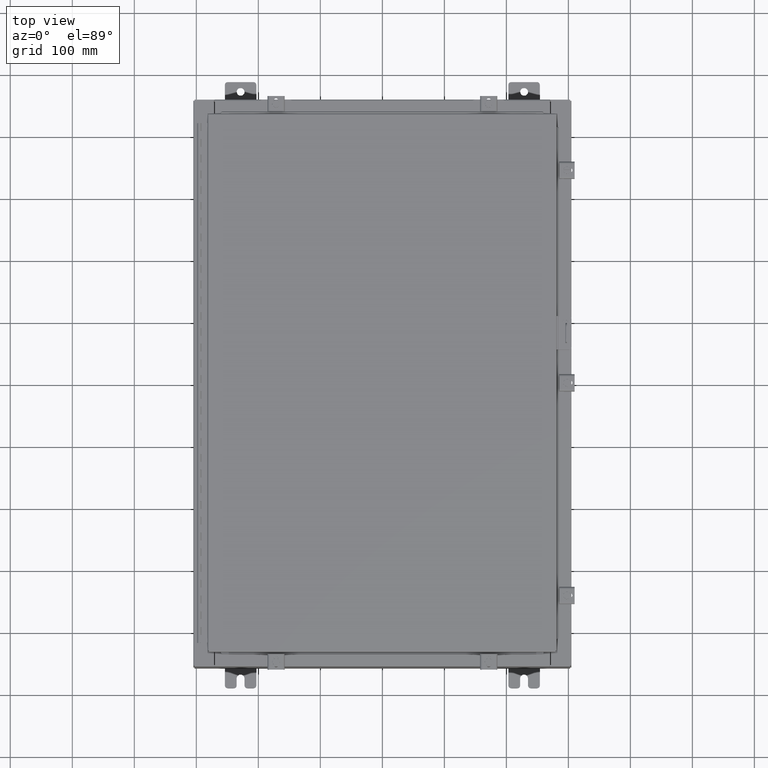
[diagram: clean part render]
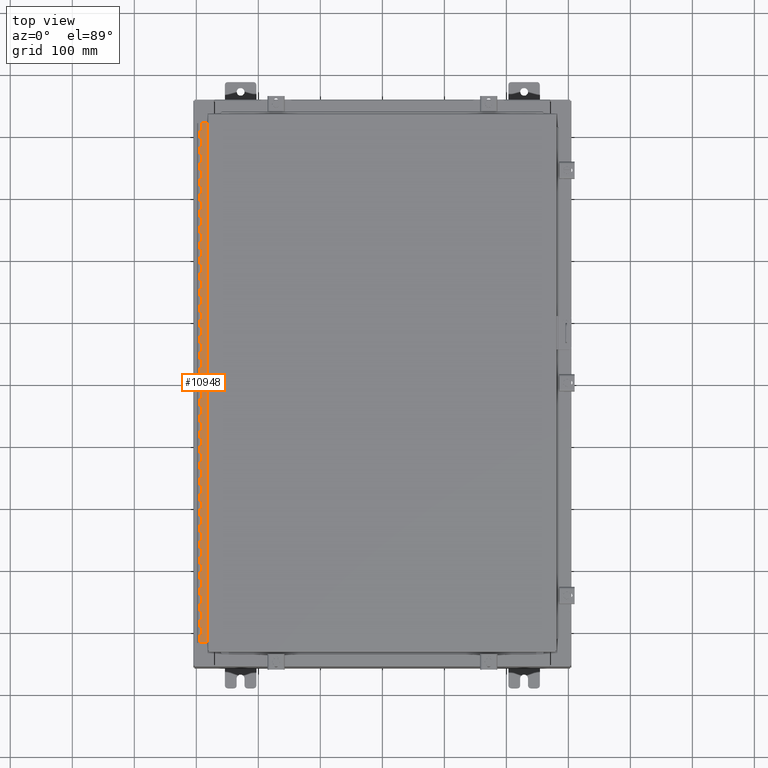
[diagram: same view with one face highlighted and labeled with its STEP entity id]
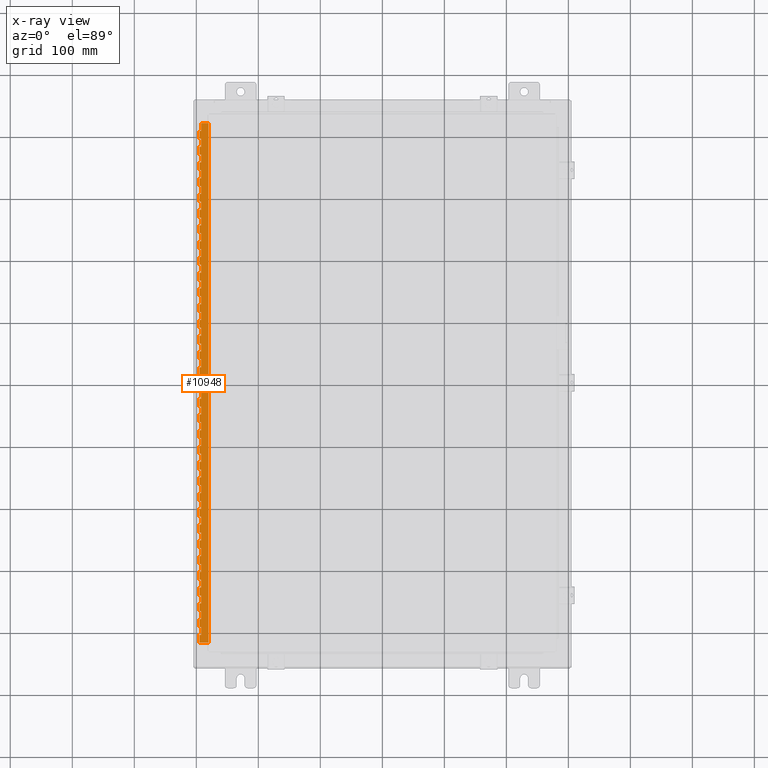
[diagram: x-ray of the same camera — body ghosted, the highlighted face saturated]
A machine part, top view. The second image highlights one B-rep face of the part: STEP entity #10948.
The next image is the same camera in x-ray: the body ghosted, the highlighted face saturated — about 0% of this face is hidden behind the body in this view.
In plain terms, the highlighted planar face has unit normal (-0, -0, 1).
Its self-contained STEP definition (entity closure, byte-faithful):
#8 = CARTESIAN_POINT ( 'NONE',  ( -0.6869999999999987200, 0.5504999999999989900, -19.50000000000000000 ) ) ;
#16 = CARTESIAN_POINT ( 'NONE',  ( -0.6870000000000030500, 0.8005000000000001000, -20.50000000000000400 ) ) ;
#17 = CARTESIAN_POINT ( 'NONE',  ( -0.6870000000000030500, 0.6755000000000007700, -29.99999999999999600 ) ) ;
#38 = VECTOR ( 'NONE', #21689, 39.37007874015748100 ) ;
#50 = VECTOR ( 'NONE', #12789, 39.37007874015748100 ) ;
#70 = CARTESIAN_POINT ( 'NONE',  ( -0.6869999999999976100, 0.6754999999999897800, -33.00000000000000000 ) ) ;
#73 = VECTOR ( 'NONE', #21015, 39.37007874015748100 ) ;
#75 = EDGE_CURVE ( 'NONE', #11328, #9581, #25940, .T. ) ;
#197 = ORIENTED_EDGE ( 'NONE', *, *, #27205, .F. ) ;
#260 = CARTESIAN_POINT ( 'NONE',  ( -0.6870000000000030500, 0.8005000000000001000, -24.50000000000000000 ) ) ;
#268 = VECTOR ( 'NONE', #21745, 39.37007874015748100 ) ;
#351 = ORIENTED_EDGE ( 'NONE', *, *, #25756, .F. ) ;
#386 = VECTOR ( 'NONE', #15845, 39.37007874015748100 ) ;
#535 = EDGE_CURVE ( 'NONE', #28699, #23317, #24854, .T. ) ;
#547 = LINE ( 'NONE', #26279, #25729 ) ;
#665 = ORIENTED_EDGE ( 'NONE', *, *, #19545, .T. ) ;
#761 = CARTESIAN_POINT ( 'NONE',  ( -0.6869999999999987200, 0.5504999999999989900, -25.50000000000000400 ) ) ;
#774 = VERTEX_POINT ( 'NONE', #9739 ) ;
#796 = VECTOR ( 'NONE', #5304, 39.37007874015748100 ) ;
#867 = CARTESIAN_POINT ( 'NONE',  ( -0.6869999999999976100, 0.8004999999999978800, -9.000000000000001800 ) ) ;
#941 = VERTEX_POINT ( 'NONE', #4713 ) ;
#962 = VECTOR ( 'NONE', #13721, 39.37007874015748100 ) ;
#981 = ORIENTED_EDGE ( 'NONE', *, *, #31476, .T. ) ;
#1081 = ORIENTED_EDGE ( 'NONE', *, *, #1623, .F. ) ;
#1095 = VERTEX_POINT ( 'NONE', #12189 ) ;
#1182 = VECTOR ( 'NONE', #9753, 39.37007874015748100 ) ;
#1204 = VERTEX_POINT ( 'NONE', #16055 ) ;
#1239 = VERTEX_POINT ( 'NONE', #32580 ) ;
#1276 = EDGE_CURVE ( 'NONE', #34163, #29690, #14518, .T. ) ;
#1348 = DIRECTION ( 'NONE',  ( 3.389037039080716000E-015, 1.000000000000000000, -6.767234438442647900E-031 ) ) ;
#1376 = CARTESIAN_POINT ( 'NONE',  ( -0.6869999999999998300, 0.5505000000000011000, -0.4999999999999973900 ) ) ;
#1506 = VERTEX_POINT ( 'NONE', #27666 ) ;
#1591 = VERTEX_POINT ( 'NONE', #21608 ) ;
#1608 = DIRECTION ( 'NONE',  ( 2.438073235198691400E-028, 6.823433535718099600E-031, -1.000000000000000000 ) ) ;
#1623 = EDGE_CURVE ( 'NONE', #8981, #14154, #4192, .T. ) ;
#1652 = EDGE_CURVE ( 'NONE', #26877, #41457, #8838, .T. ) ;
#1666 = CARTESIAN_POINT ( 'NONE',  ( -0.6870000000000030500, 0.6754999999999985500, -12.99999999999999800 ) ) ;
#1669 = DIRECTION ( 'NONE',  ( 3.389037039080716000E-015, 1.000000000000000000, -6.767234438442647900E-031 ) ) ;
#1703 = EDGE_CURVE ( 'NONE', #27707, #5653, #35036, .T. ) ;
#1704 = CARTESIAN_POINT ( 'NONE',  ( -0.6870000000000030500, 0.5504999999999902200, -8.500000000000000000 ) ) ;
#1753 = ORIENTED_EDGE ( 'NONE', *, *, #7909, .F. ) ;
#1787 = VERTEX_POINT ( 'NONE', #38988 ) ;
#1790 = CARTESIAN_POINT ( 'NONE',  ( -0.6869999999999987200, 0.5504999999999989900, -10.50000000000000200 ) ) ;
#1824 = EDGE_CURVE ( 'NONE', #40299, #33196, #38614, .T. ) ;
#1848 = VERTEX_POINT ( 'NONE', #6537 ) ;
#1999 = VECTOR ( 'NONE', #22609, 39.37007874015748100 ) ;
#2067 = EDGE_CURVE ( 'NONE', #42398, #35208, #5189, .T. ) ;
#2070 = LINE ( 'NONE', #41020, #21640 ) ;
#2083 = EDGE_CURVE ( 'NONE', #9573, #16185, #20629, .T. ) ;
#2111 = EDGE_CURVE ( 'NONE', #35100, #22403, #2070, .T. ) ;
#2114 = LINE ( 'NONE', #28917, #27333 ) ;
#2200 = LINE ( 'NONE', #3872, #35132 ) ;
#2287 = VECTOR ( 'NONE', #19956, 39.37007874015748100 ) ;
#2318 = EDGE_CURVE ( 'NONE', #14108, #9584, #12364, .T. ) ;
#2331 = CARTESIAN_POINT ( 'NONE',  ( -0.6869999999999987200, 0.5504999999999902200, -5.999999999999999100 ) ) ;
#2474 = CARTESIAN_POINT ( 'NONE',  ( -0.6869999999999976100, 0.8005000000000001000, -23.00000000000000000 ) ) ;
#2485 = CARTESIAN_POINT ( 'NONE',  ( -0.6870000000000030500, 0.6754999999999985500, -20.00000000000000000 ) ) ;
#2558 = VECTOR ( 'NONE', #11183, 39.37007874015748100 ) ;
#2576 = LINE ( 'NONE', #29443, #27796 ) ;
#2622 = DIRECTION ( 'NONE',  ( 3.389037039080716000E-015, 1.000000000000000000, -6.767234438442647900E-031 ) ) ;
#2660 = DIRECTION ( 'NONE',  ( -3.389037039080716000E-015, -1.000000000000000000, 6.767234438442647900E-031 ) ) ;
#2668 = LINE ( 'NONE', #4663, #10409 ) ;
#2695 = VECTOR ( 'NONE', #17365, 39.37007874015748100 ) ;
#2845 = CARTESIAN_POINT ( 'NONE',  ( -0.6869999999999987200, 0.6755000000000007700, -28.50000000000000000 ) ) ;
#2910 = CARTESIAN_POINT ( 'NONE',  ( -0.6869999999999976100, 0.6754999999999897800, -33.00000000000000000 ) ) ;
#2942 = EDGE_CURVE ( 'NONE', #13223, #39235, #7208, .T. ) ;
#2944 = CARTESIAN_POINT ( 'NONE',  ( -0.6870000000000030500, 0.5504999999999989900, -23.00000000000000000 ) ) ;
#2970 = LINE ( 'NONE', #13264, #10713 ) ;
#2997 = EDGE_CURVE ( 'NONE', #10145, #38645, #3025, .T. ) ;
#3025 = LINE ( 'NONE', #2910, #1999 ) ;
#3182 = VECTOR ( 'NONE', #24687, 39.37007874015748100 ) ;
#3205 = VERTEX_POINT ( 'NONE', #761 ) ;
#3206 = LINE ( 'NONE', #39980, #29448 ) ;
#3244 = VERTEX_POINT ( 'NONE', #30499 ) ;
#3293 = LINE ( 'NONE', #24175, #37217 ) ;
#3305 = ORIENTED_EDGE ( 'NONE', *, *, #14827, .T. ) ;
#3328 = VERTEX_POINT ( 'NONE', #17741 ) ;
#3355 = ORIENTED_EDGE ( 'NONE', *, *, #15293, .F. ) ;
#3420 = LINE ( 'NONE', #15540, #18864 ) ;
#3428 = LINE ( 'NONE', #7935, #19913 ) ;
#3460 = DIRECTION ( 'NONE',  ( -2.438073235198691400E-028, -6.823433535718099600E-031, 1.000000000000000000 ) ) ;
#3470 = ORIENTED_EDGE ( 'NONE', *, *, #7946, .F. ) ;
#3545 = VERTEX_POINT ( 'NONE', #28606 ) ;
#3568 = VERTEX_POINT ( 'NONE', #18858 ) ;
#3600 = CARTESIAN_POINT ( 'NONE',  ( -0.6870000000000030500, -0.6245000000000002800, 0.0000000000000000000 ) ) ;
#3669 = CARTESIAN_POINT ( 'NONE',  ( -0.6870000000000019400, 0.8004999999999978800, -11.50000000000000200 ) ) ;
#3706 = LINE ( 'NONE', #33820, #37622 ) ;
#3736 = DIRECTION ( 'NONE',  ( -3.389037039080716000E-015, -1.000000000000000000, 6.767234438442647900E-031 ) ) ;
#3756 = VECTOR ( 'NONE', #31275, 39.37007874015748100 ) ;
#3766 = VERTEX_POINT ( 'NONE', #37968 ) ;
#3872 = CARTESIAN_POINT ( 'NONE',  ( -0.6870000000000041600, 0.5504999999999989900, -12.49999999999999800 ) ) ;
#4030 = LINE ( 'NONE', #9673, #29220 ) ;
#4033 = PLANE ( 'NONE',  #29824 ) ;
#4192 = LINE ( 'NONE', #11985, #36058 ) ;
#4249 = DIRECTION ( 'NONE',  ( -3.389037039080716000E-015, -1.000000000000000000, 6.767234438442647900E-031 ) ) ;
#4265 = EDGE_CURVE ( 'NONE', #10120, #1204, #5866, .T. ) ;
#4271 = CARTESIAN_POINT ( 'NONE',  ( -0.6869999999999987200, 0.8005000000000001000, -21.50000000000000400 ) ) ;
#4379 = VECTOR ( 'NONE', #1348, 39.37007874015748100 ) ;
#4452 = EDGE_CURVE ( 'NONE', #35535, #10120, #16132, .T. ) ;
#4490 = LINE ( 'NONE', #37127, #38401 ) ;
#4536 = DIRECTION ( 'NONE',  ( -3.389037039080716000E-015, -1.000000000000000000, 6.767234438442647900E-031 ) ) ;
#4540 = VECTOR ( 'NONE', #15156, 39.37007874015748100 ) ;
#4601 = EDGE_CURVE ( 'NONE', #5038, #36619, #36150, .T. ) ;
#4625 = CARTESIAN_POINT ( 'NONE',  ( -0.6869999999999976100, 0.6754999999999897800, -33.00000000000000000 ) ) ;
#4661 = EDGE_CURVE ( 'NONE', #38557, #8618, #7904, .T. ) ;
#4663 = CARTESIAN_POINT ( 'NONE',  ( -0.6870000000000030500, 0.8005000000000001000, -0.4999999999999973900 ) ) ;
#4713 = CARTESIAN_POINT ( 'NONE',  ( -0.6870000000000030500, 0.6754999999999897800, -3.000000000000001800 ) ) ;
#4722 = ORIENTED_EDGE ( 'NONE', *, *, #25692, .F. ) ;
#4736 = EDGE_CURVE ( 'NONE', #16209, #26875, #40819, .T. ) ;
#4750 = CARTESIAN_POINT ( 'NONE',  ( -0.6869999999999987200, 0.6755000000000007700, -23.00000000000000000 ) ) ;
#4785 = VECTOR ( 'NONE', #7315, 39.37007874015748100 ) ;
#4822 = EDGE_CURVE ( 'NONE', #11050, #39902, #20222, .T. ) ;
#4848 = VERTEX_POINT ( 'NONE', #7743 ) ;
#4858 = DIRECTION ( 'NONE',  ( -3.389037039080716000E-015, -1.000000000000000000, 6.767234438442647900E-031 ) ) ;
#4889 = VECTOR ( 'NONE', #12823, 39.37007874015748100 ) ;
#4936 = VECTOR ( 'NONE', #19046, 39.37007874015748100 ) ;
#4954 = EDGE_CURVE ( 'NONE', #11328, #16288, #31485, .T. ) ;
#4963 = VERTEX_POINT ( 'NONE', #18354 ) ;
#4984 = VERTEX_POINT ( 'NONE', #21787 ) ;
#5029 = CARTESIAN_POINT ( 'NONE',  ( -0.6869999999999976100, 0.8005000000000001000, -22.00000000000000000 ) ) ;
#5031 = VECTOR ( 'NONE', #39043, 39.37007874015748100 ) ;
#5038 = VERTEX_POINT ( 'NONE', #18785 ) ;
#5072 = CARTESIAN_POINT ( 'NONE',  ( -0.6869999999999998300, 0.6755000000000007700, -22.50000000000000000 ) ) ;
#5111 = CARTESIAN_POINT ( 'NONE',  ( -0.6870000000000041600, 0.5504999999999989900, -17.50000000000000000 ) ) ;
#5127 = ORIENTED_EDGE ( 'NONE', *, *, #26204, .F. ) ;
#5134 = ORIENTED_EDGE ( 'NONE', *, *, #29633, .F. ) ;
#5189 = LINE ( 'NONE', #17730, #29344 ) ;
#5219 = VERTEX_POINT ( 'NONE', #2331 ) ;
#5235 = EDGE_CURVE ( 'NONE', #7936, #1506, #5772, .T. ) ;
#5304 = DIRECTION ( 'NONE',  ( 2.438073235198691400E-028, 6.823433535718099600E-031, -1.000000000000000000 ) ) ;
#5490 = LINE ( 'NONE', #70, #39431 ) ;
#5527 = LINE ( 'NONE', #17381, #30705 ) ;
#5565 = DIRECTION ( 'NONE',  ( 2.438073235198691400E-028, 6.823433535718099600E-031, -1.000000000000000000 ) ) ;
#5604 = DIRECTION ( 'NONE',  ( -3.389037039080716000E-015, -1.000000000000000000, 6.767234438442647900E-031 ) ) ;
#5609 = CARTESIAN_POINT ( 'NONE',  ( -0.6870000000000030500, 0.6754999999999985500, -17.50000000000000000 ) ) ;
#5629 = EDGE_CURVE ( 'NONE', #14862, #39902, #17572, .T. ) ;
#5653 = VERTEX_POINT ( 'NONE', #4750 ) ;
#5657 = EDGE_CURVE ( 'NONE', #19343, #21140, #40723, .T. ) ;
#5692 = VECTOR ( 'NONE', #25675, 39.37007874015748100 ) ;
#5693 = CARTESIAN_POINT ( 'NONE',  ( -0.6870000000000019400, 0.8005000000000001000, -16.00000000000000000 ) ) ;
#5746 = CARTESIAN_POINT ( 'NONE',  ( -0.6870000000000041600, 0.5504999999999989900, -17.00000000000000000 ) ) ;
#5772 = LINE ( 'NONE', #12550, #21191 ) ;
#5775 = VECTOR ( 'NONE', #29555, 39.37007874015748100 ) ;
#5778 = CARTESIAN_POINT ( 'NONE',  ( -0.6869999999999987200, 0.6754999999999985500, -8.500000000000000000 ) ) ;
#5866 = LINE ( 'NONE', #37474, #39813 ) ;
#5910 = LINE ( 'NONE', #23939, #40905 ) ;
#5919 = CARTESIAN_POINT ( 'NONE',  ( -0.6870000000000041600, 0.5504999999999902200, -2.500000000000000000 ) ) ;
#5928 = LINE ( 'NONE', #32518, #4889 ) ;
#5945 = CARTESIAN_POINT ( 'NONE',  ( -0.6870000000000019400, 0.8005000000000001000, -29.99999999999999600 ) ) ;
#5997 = VERTEX_POINT ( 'NONE', #22829 ) ;
#6003 = DIRECTION ( 'NONE',  ( 3.389037039080716000E-015, 1.000000000000000000, -6.767234438442647900E-031 ) ) ;
#6033 = CARTESIAN_POINT ( 'NONE',  ( -0.6870000000000030500, 0.5504999999999989900, -23.50000000000000000 ) ) ;
#6034 = CARTESIAN_POINT ( 'NONE',  ( -0.6870000000000030500, 0.5504999999999989900, -22.50000000000000000 ) ) ;
#6047 = VECTOR ( 'NONE', #40172, 39.37007874015748100 ) ;
#6081 = EDGE_CURVE ( 'NONE', #16209, #12828, #31406, .T. ) ;
#6106 = LINE ( 'NONE', #28841, #31268 ) ;
#6134 = LINE ( 'NONE', #4271, #40084 ) ;
#6145 = EDGE_CURVE ( 'NONE', #19797, #12612, #17528, .T. ) ;
#6170 = LINE ( 'NONE', #28285, #22600 ) ;
#6211 = LINE ( 'NONE', #40945, #22640 ) ;
#6269 = EDGE_CURVE ( 'NONE', #34163, #35311, #28792, .T. ) ;
#6270 = DIRECTION ( 'NONE',  ( 3.389037039080716000E-015, 1.000000000000000000, -6.767234438442647900E-031 ) ) ;
#6294 = VECTOR ( 'NONE', #2660, 39.37007874015748100 ) ;
#6307 = ORIENTED_EDGE ( 'NONE', *, *, #13650, .T. ) ;
#6321 = CARTESIAN_POINT ( 'NONE',  ( -0.6870000000000030500, 0.5505000000000011000, -32.00000000000000000 ) ) ;
#6348 = VECTOR ( 'NONE', #33839, 39.37007874015748100 ) ;
#6388 = ORIENTED_EDGE ( 'NONE', *, *, #32391, .T. ) ;
#6425 = CARTESIAN_POINT ( 'NONE',  ( -0.6870000000000030500, 0.8005000000000001000, -29.50000000000000000 ) ) ;
#6492 = EDGE_CURVE ( 'NONE', #19568, #27446, #24679, .T. ) ;
#6503 = ORIENTED_EDGE ( 'NONE', *, *, #40039, .F. ) ;
#6521 = VERTEX_POINT ( 'NONE', #9167 ) ;
#6537 = CARTESIAN_POINT ( 'NONE',  ( -0.6869999999999987200, 0.5504999999999902200, -6.499999999999999100 ) ) ;
#6566 = DIRECTION ( 'NONE',  ( 3.389037039080716000E-015, 1.000000000000000000, -6.767234438442647900E-031 ) ) ;
#6575 = EDGE_CURVE ( 'NONE', #19506, #13416, #23783, .T. ) ;
#6616 = CARTESIAN_POINT ( 'NONE',  ( -0.6869999999999998300, 0.6755000000000007700, -32.00000000000000000 ) ) ;
#6641 = VERTEX_POINT ( 'NONE', #31987 ) ;
#6721 = DIRECTION ( 'NONE',  ( 3.369016658928391100E-015, 1.000000000000000000, -7.336534739310817400E-031 ) ) ;
#6758 = VERTEX_POINT ( 'NONE', #13021 ) ;
#6769 = LINE ( 'NONE', #16152, #14477 ) ;
#6891 = VERTEX_POINT ( 'NONE', #37271 ) ;
#6892 = EDGE_CURVE ( 'NONE', #38851, #12570, #28910, .T. ) ;
#6930 = EDGE_CURVE ( 'NONE', #38131, #13223, #2668, .T. ) ;
#6989 = VERTEX_POINT ( 'NONE', #21350 ) ;
#7112 = LINE ( 'NONE', #32428, #5031 ) ;
#7195 = CARTESIAN_POINT ( 'NONE',  ( -0.6870000000000030500, 0.5504999999999989900, -27.50000000000000000 ) ) ;
#7199 = VECTOR ( 'NONE', #32791, 39.37007874015748100 ) ;
#7208 = LINE ( 'NONE', #12571, #39049 ) ;
#7279 = DIRECTION ( 'NONE',  ( -3.389037039080716000E-015, -1.000000000000000000, 6.767234438442647900E-031 ) ) ;
#7284 = ORIENTED_EDGE ( 'NONE', *, *, #41199, .F. ) ;
#7315 = DIRECTION ( 'NONE',  ( -3.389037039080716000E-015, -1.000000000000000000, 6.767234438442647900E-031 ) ) ;
#7367 = DIRECTION ( 'NONE',  ( 1.000000000000000000, -3.369016658928390700E-015, -2.440538425527494500E-028 ) ) ;
#7425 = DIRECTION ( 'NONE',  ( 2.438073235198691400E-028, 6.823433535718099600E-031, -1.000000000000000000 ) ) ;
#7449 = LINE ( 'NONE', #28879, #10526 ) ;
#7458 = CARTESIAN_POINT ( 'NONE',  ( -0.6870000000000030500, 0.6754999999999897800, -1.999999999999998400 ) ) ;
#7462 = LINE ( 'NONE', #27088, #32630 ) ;
#7471 = DIRECTION ( 'NONE',  ( 2.438073235198691400E-028, 6.823433535718099600E-031, -1.000000000000000000 ) ) ;
#7484 = VERTEX_POINT ( 'NONE', #13855 ) ;
#7513 = DIRECTION ( 'NONE',  ( 3.389037039080716000E-015, 1.000000000000000000, -6.767234438442647900E-031 ) ) ;
#7607 = CARTESIAN_POINT ( 'NONE',  ( -0.6869999999999976100, 0.6754999999999897800, -33.00000000000000000 ) ) ;
#7611 = CARTESIAN_POINT ( 'NONE',  ( -0.6870000000000030500, 0.8004999999999978800, -10.50000000000000200 ) ) ;
#7648 = FACE_OUTER_BOUND ( 'NONE', #16157, .T. ) ;
#7725 = DIRECTION ( 'NONE',  ( 3.389037039080716000E-015, 1.000000000000000000, -6.767234438442647900E-031 ) ) ;
#7743 = CARTESIAN_POINT ( 'NONE',  ( -0.6869999999999987200, 0.6754999999999985500, -19.00000000000000000 ) ) ;
#7830 = VERTEX_POINT ( 'NONE', #25703 ) ;
#7883 = VERTEX_POINT ( 'NONE', #42426 ) ;
#7904 = LINE ( 'NONE', #29842, #15587 ) ;
#7909 = EDGE_CURVE ( 'NONE', #30779, #12846, #2576, .T. ) ;
#7935 = CARTESIAN_POINT ( 'NONE',  ( -0.6869999999999987200, 0.5504999999999989900, -24.50000000000000000 ) ) ;
#7936 = VERTEX_POINT ( 'NONE', #29594 ) ;
#7943 = CARTESIAN_POINT ( 'NONE',  ( -0.6870000000000030500, 0.6754999999999985500, -22.00000000000000000 ) ) ;
#7944 = ORIENTED_EDGE ( 'NONE', *, *, #4822, .T. ) ;
#7946 = EDGE_CURVE ( 'NONE', #6891, #30825, #547, .T. ) ;
#7971 = ORIENTED_EDGE ( 'NONE', *, *, #23055, .F. ) ;
#8009 = EDGE_CURVE ( 'NONE', #5219, #21140, #6211, .T. ) ;
#8016 = DIRECTION ( 'NONE',  ( -3.389037039080716000E-015, -1.000000000000000000, 6.767234438442647900E-031 ) ) ;
#8061 = EDGE_CURVE ( 'NONE', #1095, #8981, #31384, .T. ) ;
#8135 = VECTOR ( 'NONE', #30578, 39.37007874015748100 ) ;
#8183 = EDGE_CURVE ( 'NONE', #12742, #1591, #16473, .T. ) ;
#8219 = EDGE_CURVE ( 'NONE', #36938, #41962, #14410, .T. ) ;
#8300 = LINE ( 'NONE', #14898, #25749 ) ;
#8315 = CARTESIAN_POINT ( 'NONE',  ( -0.6870000000000030500, 0.8005000000000001000, -23.99999999999999600 ) ) ;
#8483 = VECTOR ( 'NONE', #19557, 39.37007874015748100 ) ;
#8524 = DIRECTION ( 'NONE',  ( 2.438073235198691400E-028, 6.823433535718099600E-031, -1.000000000000000000 ) ) ;
#8535 = VECTOR ( 'NONE', #36846, 39.37007874015748100 ) ;
#8544 = LINE ( 'NONE', #34774, #796 ) ;
#8554 = EDGE_CURVE ( 'NONE', #17010, #36324, #29284, .T. ) ;
#8556 = EDGE_CURVE ( 'NONE', #7830, #3545, #19513, .T. ) ;
#8618 = VERTEX_POINT ( 'NONE', #34693 ) ;
#8631 = CARTESIAN_POINT ( 'NONE',  ( -0.6870000000000030500, 0.5504999999999902200, -32.50000000000000000 ) ) ;
#8638 = VECTOR ( 'NONE', #20083, 39.37007874015748100 ) ;
#8707 = DIRECTION ( 'NONE',  ( 3.389037039080716000E-015, 1.000000000000000000, -6.767234438442647900E-031 ) ) ;
#8766 = VERTEX_POINT ( 'NONE', #42014 ) ;
#8788 = VECTOR ( 'NONE', #42051, 39.37007874015748100 ) ;
#8838 = LINE ( 'NONE', #12270, #17577 ) ;
#8881 = ORIENTED_EDGE ( 'NONE', *, *, #37638, .F. ) ;
#8907 = VERTEX_POINT ( 'NONE', #17 ) ;
#8966 = CARTESIAN_POINT ( 'NONE',  ( -0.6870000000000030500, 0.5504999999999989900, -22.50000000000000000 ) ) ;
#8981 = VERTEX_POINT ( 'NONE', #13397 ) ;
#8990 = VECTOR ( 'NONE', #9009, 39.37007874015748100 ) ;
#9009 = DIRECTION ( 'NONE',  ( 2.438073235198691400E-028, 6.823433535718099600E-031, -1.000000000000000000 ) ) ;
#9031 = LINE ( 'NONE', #41475, #268 ) ;
#9060 = LINE ( 'NONE', #27959, #34217 ) ;
#9063 = CARTESIAN_POINT ( 'NONE',  ( -0.6869999999999987200, 0.6754999999999897800, -4.500000000000002700 ) ) ;
#9090 = VECTOR ( 'NONE', #14273, 39.37007874015748100 ) ;
#9153 = LINE ( 'NONE', #8966, #26616 ) ;
#9162 = ORIENTED_EDGE ( 'NONE', *, *, #8554, .T. ) ;
#9167 = CARTESIAN_POINT ( 'NONE',  ( -0.6869999999999976100, 0.6755000000000007700, -28.99999999999999600 ) ) ;
#9231 = DIRECTION ( 'NONE',  ( -2.438073235198691400E-028, -6.823433535718099600E-031, 1.000000000000000000 ) ) ;
#9264 = LINE ( 'NONE', #32899, #16967 ) ;
#9356 = EDGE_CURVE ( 'NONE', #1787, #22403, #6106, .T. ) ;
#9416 = VERTEX_POINT ( 'NONE', #5609 ) ;
#9419 = LINE ( 'NONE', #10769, #25837 ) ;
#9422 = ORIENTED_EDGE ( 'NONE', *, *, #41653, .T. ) ;
#9423 = VECTOR ( 'NONE', #7279, 39.37007874015748100 ) ;
#9433 = ORIENTED_EDGE ( 'NONE', *, *, #15887, .F. ) ;
#9464 = VECTOR ( 'NONE', #5604, 39.37007874015748100 ) ;
#9521 = CARTESIAN_POINT ( 'NONE',  ( -0.6870000000000030500, 0.6754999999999897800, -2.500000000000000000 ) ) ;
#9532 = DIRECTION ( 'NONE',  ( -2.438073235198691400E-028, -6.823433535718099600E-031, 1.000000000000000000 ) ) ;
#9573 = VERTEX_POINT ( 'NONE', #6321 ) ;
#9581 = VERTEX_POINT ( 'NONE', #36024 ) ;
#9584 = VERTEX_POINT ( 'NONE', #39372 ) ;
#9673 = CARTESIAN_POINT ( 'NONE',  ( -0.6869999999999976100, 0.8005000000000001000, -13.50000000000000000 ) ) ;
#9739 = CARTESIAN_POINT ( 'NONE',  ( -0.6870000000000041600, 0.5505000000000011000, -30.50000000000000400 ) ) ;
#9747 = ORIENTED_EDGE ( 'NONE', *, *, #12057, .F. ) ;
#9753 = DIRECTION ( 'NONE',  ( -3.389037039080716000E-015, -1.000000000000000000, 6.767234438442647900E-031 ) ) ;
#9769 = DIRECTION ( 'NONE',  ( 3.389037039080716000E-015, 1.000000000000000000, -6.767234438442647900E-031 ) ) ;
#9785 = EDGE_CURVE ( 'NONE', #34058, #30001, #34324, .T. ) ;
#9821 = LINE ( 'NONE', #24857, #38 ) ;
#9849 = CARTESIAN_POINT ( 'NONE',  ( -0.6870000000000030500, 0.8004999999999892200, -1.999999999999998400 ) ) ;
#9915 = DIRECTION ( 'NONE',  ( -2.438073235198691400E-028, -6.823433535718099600E-031, 1.000000000000000000 ) ) ;
#10092 = VECTOR ( 'NONE', #12778, 39.37007874015748100 ) ;
#10116 = EDGE_CURVE ( 'NONE', #4963, #9581, #38987, .T. ) ;
#10120 = VERTEX_POINT ( 'NONE', #42060 ) ;
#10121 = VECTOR ( 'NONE', #39920, 39.37007874015748100 ) ;
#10145 = VERTEX_POINT ( 'NONE', #32407 ) ;
#10253 = VERTEX_POINT ( 'NONE', #13316 ) ;
#10283 = CARTESIAN_POINT ( 'NONE',  ( -0.6869999999999976100, 0.6754999999999897800, -33.00000000000000000 ) ) ;
#10396 = VERTEX_POINT ( 'NONE', #23741 ) ;
#10409 = VECTOR ( 'NONE', #8016, 39.37007874015748100 ) ;
#10435 = LINE ( 'NONE', #20496, #9423 ) ;
#10526 = VECTOR ( 'NONE', #9231, 39.37007874015748100 ) ;
#10583 = CARTESIAN_POINT ( 'NONE',  ( -0.6869999999999976100, 0.6754999999999897800, -33.00000000000000000 ) ) ;
#10648 = CARTESIAN_POINT ( 'NONE',  ( -0.6869999999999987200, 0.5504999999999902200, -5.499999999999997300 ) ) ;
#10651 = ORIENTED_EDGE ( 'NONE', *, *, #25284, .F. ) ;
#10713 = VECTOR ( 'NONE', #3460, 39.37007874015748100 ) ;
#10769 = CARTESIAN_POINT ( 'NONE',  ( -0.6869999999999987200, 0.5504999999999989900, -15.50000000000000000 ) ) ;
#10773 = VECTOR ( 'NONE', #37681, 39.37007874015748100 ) ;
#10793 = EDGE_CURVE ( 'NONE', #10145, #3328, #4030, .T. ) ;
#10860 = EDGE_CURVE ( 'NONE', #3568, #14154, #2970, .T. ) ;
#10866 = CARTESIAN_POINT ( 'NONE',  ( -0.6869999999999976100, 0.6754999999999897800, -33.00000000000000000 ) ) ;
#10948 = ADVANCED_FACE ( 'NONE', ( #7648 ), #4033, .T. ) ;
#10972 = ORIENTED_EDGE ( 'NONE', *, *, #25869, .F. ) ;
#10988 = EDGE_CURVE ( 'NONE', #30726, #36324, #40563, .T. ) ;
#11050 = VERTEX_POINT ( 'NONE', #14249 ) ;
#11071 = LINE ( 'NONE', #25215, #35232 ) ;
#11135 = CARTESIAN_POINT ( 'NONE',  ( -0.6869999999999987200, 0.5504999999999902200, -0.9999999999999992200 ) ) ;
#11143 = VERTEX_POINT ( 'NONE', #1704 ) ;
#11167 = ORIENTED_EDGE ( 'NONE', *, *, #42499, .F. ) ;
#11183 = DIRECTION ( 'NONE',  ( -3.389037039080716000E-015, -1.000000000000000000, 6.767234438442647900E-031 ) ) ;
#11214 = CARTESIAN_POINT ( 'NONE',  ( -0.6870000000000030500, 0.5504999999999902200, -4.000000000000000900 ) ) ;
#11241 = CARTESIAN_POINT ( 'NONE',  ( -0.6869999999999976100, 0.8005000000000001000, -32.00000000000000000 ) ) ;
#11252 = CARTESIAN_POINT ( 'NONE',  ( -0.6869999999999987200, 0.5504999999999989900, -16.00000000000000000 ) ) ;
#11264 = VECTOR ( 'NONE', #6270, 39.37007874015748100 ) ;
#11288 = CARTESIAN_POINT ( 'NONE',  ( -0.6870000000000030500, 0.8005000000000001000, -19.00000000000000000 ) ) ;
#11328 = VERTEX_POINT ( 'NONE', #39056 ) ;
#11405 = ORIENTED_EDGE ( 'NONE', *, *, #16513, .F. ) ;
#11468 = EDGE_CURVE ( 'NONE', #38557, #4848, #5527, .T. ) ;
#11604 = CARTESIAN_POINT ( 'NONE',  ( -0.6870000000000019400, 0.8005000000000001000, -24.99999999999999600 ) ) ;
#11764 = CARTESIAN_POINT ( 'NONE',  ( -0.6870000000000030500, 0.6755000000000007700, -31.50000000000000400 ) ) ;
#11768 = EDGE_CURVE ( 'NONE', #17010, #38843, #12695, .T. ) ;
#11810 = CARTESIAN_POINT ( 'NONE',  ( -0.6869999999999976100, 0.8005000000000001000, -18.50000000000000000 ) ) ;
#11891 = DIRECTION ( 'NONE',  ( 2.438073235198691400E-028, 6.823433535718099600E-031, -1.000000000000000000 ) ) ;
#11972 = EDGE_CURVE ( 'NONE', #35535, #3244, #5490, .T. ) ;
#11985 = CARTESIAN_POINT ( 'NONE',  ( -0.6869999999999976100, 0.8005000000000001000, -17.99999999999999600 ) ) ;
#12057 = EDGE_CURVE ( 'NONE', #1848, #36663, #27586, .T. ) ;
#12110 = VERTEX_POINT ( 'NONE', #23751 ) ;
#12113 = ORIENTED_EDGE ( 'NONE', *, *, #8183, .F. ) ;
#12157 = ORIENTED_EDGE ( 'NONE', *, *, #30291, .T. ) ;
#12189 = CARTESIAN_POINT ( 'NONE',  ( -0.6870000000000041600, 0.5504999999999989900, -17.50000000000000000 ) ) ;
#12250 = LINE ( 'NONE', #38085, #4540 ) ;
#12270 = CARTESIAN_POINT ( 'NONE',  ( -0.6870000000000030500, 0.8004999999999978800, -10.00000000000000000 ) ) ;
#12330 = ORIENTED_EDGE ( 'NONE', *, *, #36802, .F. ) ;
#12364 = LINE ( 'NONE', #15485, #5692 ) ;
#12384 = VECTOR ( 'NONE', #16685, 39.37007874015748100 ) ;
#12440 = CARTESIAN_POINT ( 'NONE',  ( -0.6870000000000041600, 0.5505000000000011000, -31.00000000000000000 ) ) ;
#12469 = VERTEX_POINT ( 'NONE', #30452 ) ;
#12550 = CARTESIAN_POINT ( 'NONE',  ( -0.6870000000000041600, 0.5504999999999989900, -21.50000000000000400 ) ) ;
#12567 = VERTEX_POINT ( 'NONE', #34187 ) ;
#12570 = VERTEX_POINT ( 'NONE', #17838 ) ;
#12571 = CARTESIAN_POINT ( 'NONE',  ( -0.6869999999999998300, 0.5505000000000011000, -0.4999999999999973900 ) ) ;
#12595 = CARTESIAN_POINT ( 'NONE',  ( -0.6870000000000030500, 0.5504999999999967700, -9.500000000000003600 ) ) ;
#12612 = VERTEX_POINT ( 'NONE', #34465 ) ;
#12616 = ORIENTED_EDGE ( 'NONE', *, *, #24444, .F. ) ;
#12634 = ORIENTED_EDGE ( 'NONE', *, *, #31855, .T. ) ;
#12695 = LINE ( 'NONE', #28672, #20432 ) ;
#12742 = VERTEX_POINT ( 'NONE', #9063 ) ;
#12778 = DIRECTION ( 'NONE',  ( -3.389037039080716000E-015, -1.000000000000000000, 6.767234438442647900E-031 ) ) ;
#12789 = DIRECTION ( 'NONE',  ( -3.389037039080716000E-015, -1.000000000000000000, 6.767234438442647900E-031 ) ) ;
#12823 = DIRECTION ( 'NONE',  ( 2.438073235198691400E-028, 6.823433535718099600E-031, -1.000000000000000000 ) ) ;
#12828 = VERTEX_POINT ( 'NONE', #35593 ) ;
#12846 = VERTEX_POINT ( 'NONE', #39050 ) ;
#12897 = ORIENTED_EDGE ( 'NONE', *, *, #30870, .F. ) ;
#12937 = EDGE_CURVE ( 'NONE', #12469, #12971, #28522, .T. ) ;
#12971 = VERTEX_POINT ( 'NONE', #39786 ) ;
#12976 = ORIENTED_EDGE ( 'NONE', *, *, #39167, .F. ) ;
#13021 = CARTESIAN_POINT ( 'NONE',  ( -0.6870000000000041600, 0.5504999999999989900, -16.50000000000000000 ) ) ;
#13134 = EDGE_CURVE ( 'NONE', #30961, #6758, #5910, .T. ) ;
#13223 = VERTEX_POINT ( 'NONE', #1376 ) ;
#13230 = VERTEX_POINT ( 'NONE', #21207 ) ;
#13264 = CARTESIAN_POINT ( 'NONE',  ( -0.6869999999999976100, 0.6754999999999897800, -33.00000000000000000 ) ) ;
#13280 = ORIENTED_EDGE ( 'NONE', *, *, #30462, .T. ) ;
#13312 = CARTESIAN_POINT ( 'NONE',  ( -0.6869999999999976100, 0.6754999999999897800, -33.00000000000000000 ) ) ;
#13316 = CARTESIAN_POINT ( 'NONE',  ( -0.6869999999999998300, 0.5504999999999989900, -19.00000000000000000 ) ) ;
#13350 = DIRECTION ( 'NONE',  ( -3.389037039080716000E-015, -1.000000000000000000, 6.767234438442647900E-031 ) ) ;
#13389 = CARTESIAN_POINT ( 'NONE',  ( -0.6870000000000030500, 0.5504999999999989900, -23.50000000000000000 ) ) ;
#13397 = CARTESIAN_POINT ( 'NONE',  ( -0.6870000000000030500, 0.5504999999999989900, -17.99999999999999600 ) ) ;
#13416 = VERTEX_POINT ( 'NONE', #2485 ) ;
#13453 = CARTESIAN_POINT ( 'NONE',  ( -0.6869999999999987200, 0.6754999999999985500, -9.000000000000001800 ) ) ;
#13650 = EDGE_CURVE ( 'NONE', #30961, #27446, #27129, .T. ) ;
#13718 = CARTESIAN_POINT ( 'NONE',  ( -0.6870000000000030500, 0.6754999999999985500, -8.000000000000001800 ) ) ;
#13721 = DIRECTION ( 'NONE',  ( -2.438073235198691400E-028, -6.823433535718099600E-031, 1.000000000000000000 ) ) ;
#13764 = EDGE_CURVE ( 'NONE', #8618, #19506, #39471, .T. ) ;
#13841 = CARTESIAN_POINT ( 'NONE',  ( -0.6870000000000030500, 0.5504999999999989900, -14.00000000000000000 ) ) ;
#13855 = CARTESIAN_POINT ( 'NONE',  ( -0.6870000000000030500, 0.6755000000000007700, -29.50000000000000000 ) ) ;
#13889 = ORIENTED_EDGE ( 'NONE', *, *, #28537, .T. ) ;
#13912 = VECTOR ( 'NONE', #14212, 39.37007874015748100 ) ;
#13930 = CARTESIAN_POINT ( 'NONE',  ( -0.6869999999999987200, 0.6754999999999897800, -32.50000000000000000 ) ) ;
#14023 = VERTEX_POINT ( 'NONE', #18542 ) ;
#14059 = ORIENTED_EDGE ( 'NONE', *, *, #15002, .F. ) ;
#14089 = CARTESIAN_POINT ( 'NONE',  ( -0.6870000000000030500, 0.8005000000000001000, -28.00000000000000000 ) ) ;
#14108 = VERTEX_POINT ( 'NONE', #5746 ) ;
#14142 = VERTEX_POINT ( 'NONE', #38797 ) ;
#14154 = VERTEX_POINT ( 'NONE', #22415 ) ;
#14212 = DIRECTION ( 'NONE',  ( -3.389037039080716000E-015, -1.000000000000000000, 6.767234438442647900E-031 ) ) ;
#14249 = CARTESIAN_POINT ( 'NONE',  ( -0.6870000000000030500, 0.6754999999999985500, -11.50000000000000200 ) ) ;
#14273 = DIRECTION ( 'NONE',  ( 2.438073235198691400E-028, 6.823433535718099600E-031, -1.000000000000000000 ) ) ;
#14310 = VECTOR ( 'NONE', #7513, 39.37007874015748100 ) ;
#14321 = ORIENTED_EDGE ( 'NONE', *, *, #1703, .F. ) ;
#14371 = CARTESIAN_POINT ( 'NONE',  ( -0.6870000000000030500, 0.5504999999999989900, -12.99999999999999800 ) ) ;
#14402 = CARTESIAN_POINT ( 'NONE',  ( -0.6869999999999976100, 0.6754999999999897800, -33.00000000000000000 ) ) ;
#14406 = VECTOR ( 'NONE', #35920, 39.37007874015748100 ) ;
#14410 = LINE ( 'NONE', #25635, #30852 ) ;
#14428 = ORIENTED_EDGE ( 'NONE', *, *, #10988, .F. ) ;
#14433 = VERTEX_POINT ( 'NONE', #27828 ) ;
#14474 = CARTESIAN_POINT ( 'NONE',  ( -0.6869999999999976100, 0.6754999999999985500, -19.50000000000000000 ) ) ;
#14477 = VECTOR ( 'NONE', #29496, 39.37007874015748100 ) ;
#14518 = LINE ( 'NONE', #35993, #5775 ) ;
#14522 = DIRECTION ( 'NONE',  ( 2.438073235198691400E-028, 6.823433535718099600E-031, -1.000000000000000000 ) ) ;
#14527 = ORIENTED_EDGE ( 'NONE', *, *, #5629, .F. ) ;
#14621 = ORIENTED_EDGE ( 'NONE', *, *, #36497, .F. ) ;
#14702 = LINE ( 'NONE', #32263, #4936 ) ;
#14736 = ORIENTED_EDGE ( 'NONE', *, *, #1652, .F. ) ;
#14827 = EDGE_CURVE ( 'NONE', #18329, #16185, #28562, .T. ) ;
#14862 = VERTEX_POINT ( 'NONE', #23610 ) ;
#14889 = CARTESIAN_POINT ( 'NONE',  ( -0.6869999999999976100, 0.6754999999999897800, -33.00000000000000000 ) ) ;
#14898 = CARTESIAN_POINT ( 'NONE',  ( -0.6869999999999976100, 0.6754999999999897800, -33.00000000000000000 ) ) ;
#15002 = EDGE_CURVE ( 'NONE', #7484, #26666, #23417, .T. ) ;
#15009 = ORIENTED_EDGE ( 'NONE', *, *, #29499, .F. ) ;
#15029 = LINE ( 'NONE', #22516, #30431 ) ;
#15042 = ORIENTED_EDGE ( 'NONE', *, *, #22300, .F. ) ;
#15156 = DIRECTION ( 'NONE',  ( 3.389037039080716000E-015, 1.000000000000000000, -6.767234438442647900E-031 ) ) ;
#15162 = LINE ( 'NONE', #3600, #22843 ) ;
#15232 = CARTESIAN_POINT ( 'NONE',  ( -0.6870000000000030500, 0.6754999999999985500, -16.50000000000000000 ) ) ;
#15241 = ORIENTED_EDGE ( 'NONE', *, *, #2067, .F. ) ;
#15293 = EDGE_CURVE ( 'NONE', #22867, #12612, #29567, .T. ) ;
#15433 = VECTOR ( 'NONE', #28648, 39.37007874015748100 ) ;
#15485 = CARTESIAN_POINT ( 'NONE',  ( -0.6869999999999976100, 0.8005000000000001000, -17.00000000000000000 ) ) ;
#15486 = VECTOR ( 'NONE', #34558, 39.37007874015748100 ) ;
#15497 = VECTOR ( 'NONE', #19580, 39.37007874015748100 ) ;
#15540 = CARTESIAN_POINT ( 'NONE',  ( -0.6870000000000030500, 0.5504999999999902200, -4.500000000000002700 ) ) ;
#15553 = CARTESIAN_POINT ( 'NONE',  ( -0.6870000000000030500, 0.5504999999999902200, -3.499999999999999100 ) ) ;
#15587 = VECTOR ( 'NONE', #13350, 39.37007874015748100 ) ;
#15640 = EDGE_CURVE ( 'NONE', #42398, #5653, #17212, .T. ) ;
#15670 = CARTESIAN_POINT ( 'NONE',  ( -0.6869999999999976100, 0.8005000000000001000, -31.50000000000000400 ) ) ;
#15684 = LINE ( 'NONE', #4625, #40909 ) ;
#15751 = ORIENTED_EDGE ( 'NONE', *, *, #9356, .F. ) ;
#15820 = LINE ( 'NONE', #5945, #386 ) ;
#15845 = DIRECTION ( 'NONE',  ( 3.389037039080716000E-015, 1.000000000000000000, -6.767234438442647900E-031 ) ) ;
#15887 = EDGE_CURVE ( 'NONE', #36619, #30779, #27460, .T. ) ;
#15995 = VECTOR ( 'NONE', #31266, 39.37007874015748100 ) ;
#16048 = ORIENTED_EDGE ( 'NONE', *, *, #4452, .F. ) ;
#16055 = CARTESIAN_POINT ( 'NONE',  ( -0.6869999999999987200, 0.5505000000000011000, -28.99999999999999600 ) ) ;
#16080 = ORIENTED_EDGE ( 'NONE', *, *, #31681, .F. ) ;
#16085 = CARTESIAN_POINT ( 'NONE',  ( -0.6870000000000030500, 0.6754999999999985500, -5.999999999999999100 ) ) ;
#16132 = LINE ( 'NONE', #28578, #9464 ) ;
#16138 = VECTOR ( 'NONE', #11891, 39.37007874015748100 ) ;
#16152 = CARTESIAN_POINT ( 'NONE',  ( -0.6869999999999987200, 0.5504999999999902200, -5.499999999999997300 ) ) ;
#16157 = EDGE_LOOP ( 'NONE', ( #3470, #23271, #25376, #10651, #3305, #31574, #8881, #35648, #13280, #27945, #34798, #29909, #27827, #19400, #12976, #14059, #41998, #26962, #37707, #16048, #16622, #37902, #16624, #24478, #28334, #25216, #351, #11405, #21228, #6503, #197, #10972, #40725, #16080, #11167, #41297, #22915, #25742, #24689, #15241, #36035, #14321, #35058, #24830, #9422, #12897, #27685, #42524, #30943, #12616, #14621, #12330, #12634, #17025, #38964, #33056, #23264, #23235, #26771, #41560, #22412, #1081, #36239, #29490, #981, #18796, #24164, #19942, #6307, #20690, #29385, #25167, #31230, #3355, #16584, #35698, #665, #32327, #25956, #39070, #25016, #38639, #18678, #26809, #41218, #18872, #28596, #15009, #7944, #14527, #5127, #7971, #12157, #14736, #19603, #32527, #9162, #14428, #16278, #18312, #38611, #15751, #20678, #38505, #6388, #18309, #9747, #27524, #32932, #28641, #15042, #29410, #38104, #33912, #40009, #12113, #25293, #1753, #9433, #41115, #34709, #5134, #33767, #4722, #27402, #35526, #7284, #27608, #37315, #23718, #16670, #23250, #13889, #16698 ) ) ;
#16185 = VERTEX_POINT ( 'NONE', #6616 ) ;
#16209 = VERTEX_POINT ( 'NONE', #32895 ) ;
#16278 = ORIENTED_EDGE ( 'NONE', *, *, #22187, .F. ) ;
#16288 = VERTEX_POINT ( 'NONE', #7195 ) ;
#16298 = EDGE_CURVE ( 'NONE', #26875, #23561, #2200, .T. ) ;
#16396 = DIRECTION ( 'NONE',  ( 2.438073235198691400E-028, 6.823433535718099600E-031, -1.000000000000000000 ) ) ;
#16449 = VECTOR ( 'NONE', #18443, 39.37007874015748100 ) ;
#16462 = CARTESIAN_POINT ( 'NONE',  ( -0.6869999999999976100, 0.6754999999999897800, -33.00000000000000000 ) ) ;
#16473 = LINE ( 'NONE', #25349, #15433 ) ;
#16492 = VECTOR ( 'NONE', #36599, 39.37007874015748100 ) ;
#16513 = EDGE_CURVE ( 'NONE', #41683, #14023, #10435, .T. ) ;
#16539 = VECTOR ( 'NONE', #22166, 39.37007874015748100 ) ;
#16584 = ORIENTED_EDGE ( 'NONE', *, *, #24398, .F. ) ;
#16612 = LINE ( 'NONE', #1790, #24297 ) ;
#16622 = ORIENTED_EDGE ( 'NONE', *, *, #11972, .T. ) ;
#16624 = ORIENTED_EDGE ( 'NONE', *, *, #37945, .F. ) ;
#16643 = LINE ( 'NONE', #24526, #40828 ) ;
#16670 = ORIENTED_EDGE ( 'NONE', *, *, #2942, .F. ) ;
#16685 = DIRECTION ( 'NONE',  ( 2.438073235198691400E-028, 6.823433535718099600E-031, -1.000000000000000000 ) ) ;
#16698 = ORIENTED_EDGE ( 'NONE', *, *, #20661, .F. ) ;
#16761 = VERTEX_POINT ( 'NONE', #24899 ) ;
#16890 = DIRECTION ( 'NONE',  ( 3.389037039080716000E-015, 1.000000000000000000, -6.767234438442647900E-031 ) ) ;
#16897 = VECTOR ( 'NONE', #36281, 39.37007874015748100 ) ;
#16965 = DIRECTION ( 'NONE',  ( -3.389037039080716000E-015, -1.000000000000000000, 6.767234438442647900E-031 ) ) ;
#16967 = VECTOR ( 'NONE', #29735, 39.37007874015748100 ) ;
#17010 = VERTEX_POINT ( 'NONE', #19724 ) ;
#17025 = ORIENTED_EDGE ( 'NONE', *, *, #6575, .F. ) ;
#17087 = CARTESIAN_POINT ( 'NONE',  ( -0.6869999999999976100, 0.6754999999999897800, -33.00000000000000000 ) ) ;
#17094 = DIRECTION ( 'NONE',  ( 2.438073235198691400E-028, 6.823433535718099600E-031, -1.000000000000000000 ) ) ;
#17128 = CARTESIAN_POINT ( 'NONE',  ( -0.6870000000000030500, -0.6245000000000111600, -33.00000000000000000 ) ) ;
#17138 = LINE ( 'NONE', #38444, #34603 ) ;
#17144 = CARTESIAN_POINT ( 'NONE',  ( -0.6869999999999976100, 0.6754999999999897800, -33.00000000000000000 ) ) ;
#17155 = CARTESIAN_POINT ( 'NONE',  ( -0.6869999999999987200, 0.5505000000000011000, -29.50000000000000000 ) ) ;
#17212 = LINE ( 'NONE', #26040, #8483 ) ;
#17245 = VERTEX_POINT ( 'NONE', #24128 ) ;
#17261 = VERTEX_POINT ( 'NONE', #7943 ) ;
#17365 = DIRECTION ( 'NONE',  ( -2.438073235198691400E-028, -6.823433535718099600E-031, 1.000000000000000000 ) ) ;
#17381 = CARTESIAN_POINT ( 'NONE',  ( -0.6869999999999976100, 0.6754999999999897800, -33.00000000000000000 ) ) ;
#17444 = CARTESIAN_POINT ( 'NONE',  ( -0.6869999999999987200, 0.5504999999999989900, -20.00000000000000000 ) ) ;
#17528 = LINE ( 'NONE', #17087, #16492 ) ;
#17552 = LINE ( 'NONE', #29174, #50 ) ;
#17572 = LINE ( 'NONE', #40703, #73 ) ;
#17577 = VECTOR ( 'NONE', #18758, 39.37007874015748100 ) ;
#17593 = VECTOR ( 'NONE', #39621, 39.37007874015748100 ) ;
#17625 = CARTESIAN_POINT ( 'NONE',  ( -0.6869999999999976100, 0.8004999999999978800, -7.500000000000000000 ) ) ;
#17712 = VECTOR ( 'NONE', #8524, 39.37007874015748100 ) ;
#17730 = CARTESIAN_POINT ( 'NONE',  ( -0.6870000000000030500, 0.8005000000000001000, -23.50000000000000000 ) ) ;
#17736 = LINE ( 'NONE', #24930, #8990 ) ;
#17741 = CARTESIAN_POINT ( 'NONE',  ( -0.6870000000000030500, 0.5504999999999989900, -13.50000000000000000 ) ) ;
#17828 = LINE ( 'NONE', #40460, #9090 ) ;
#17838 = CARTESIAN_POINT ( 'NONE',  ( -0.6870000000000041600, 0.5504999999999902200, -7.500000000000000000 ) ) ;
#17857 = CARTESIAN_POINT ( 'NONE',  ( -0.6869999999999976100, 0.6754999999999897800, -33.00000000000000000 ) ) ;
#17897 = CARTESIAN_POINT ( 'NONE',  ( -0.6869999999999976100, 0.6754999999999897800, -33.00000000000000000 ) ) ;
#17923 = CARTESIAN_POINT ( 'NONE',  ( -0.6869999999999976100, 0.6754999999999985500, -5.000000000000000000 ) ) ;
#18224 = CARTESIAN_POINT ( 'NONE',  ( -0.6869999999999976100, 0.6754999999999897800, -33.00000000000000000 ) ) ;
#18309 = ORIENTED_EDGE ( 'NONE', *, *, #34106, .F. ) ;
#18312 = ORIENTED_EDGE ( 'NONE', *, *, #32724, .F. ) ;
#18313 = CARTESIAN_POINT ( 'NONE',  ( -0.6870000000000030500, 0.6755000000000007700, -25.50000000000000400 ) ) ;
#18329 = VERTEX_POINT ( 'NONE', #13930 ) ;
#18352 = LINE ( 'NONE', #39294, #26054 ) ;
#18354 = CARTESIAN_POINT ( 'NONE',  ( -0.6870000000000041600, 0.5504999999999989900, -27.00000000000000000 ) ) ;
#18443 = DIRECTION ( 'NONE',  ( -3.389037039080716000E-015, -1.000000000000000000, 6.767234438442647900E-031 ) ) ;
#18503 = CARTESIAN_POINT ( 'NONE',  ( -0.6870000000000030500, 0.8005000000000001000, -20.00000000000000000 ) ) ;
#18504 = VECTOR ( 'NONE', #1608, 39.37007874015748100 ) ;
#18542 = CARTESIAN_POINT ( 'NONE',  ( -0.6870000000000041600, 0.5504999999999989900, -26.50000000000000400 ) ) ;
#18548 = DIRECTION ( 'NONE',  ( -2.438073235198691400E-028, -6.823433535718099600E-031, 1.000000000000000000 ) ) ;
#18587 = EDGE_CURVE ( 'NONE', #35208, #3766, #25516, .T. ) ;
#18678 = ORIENTED_EDGE ( 'NONE', *, *, #16298, .F. ) ;
#18758 = DIRECTION ( 'NONE',  ( 3.389037039080716000E-015, 1.000000000000000000, -6.767234438442647900E-031 ) ) ;
#18785 = CARTESIAN_POINT ( 'NONE',  ( -0.6870000000000030500, 0.6754999999999897800, -3.499999999999999100 ) ) ;
#18793 = DIRECTION ( 'NONE',  ( 3.389037039080716000E-015, 1.000000000000000000, -6.767234438442647900E-031 ) ) ;
#18796 = ORIENTED_EDGE ( 'NONE', *, *, #2318, .F. ) ;
#18858 = CARTESIAN_POINT ( 'NONE',  ( -0.6869999999999987200, 0.6754999999999985500, -18.50000000000000000 ) ) ;
#18864 = VECTOR ( 'NONE', #22135, 39.37007874015748100 ) ;
#18872 = ORIENTED_EDGE ( 'NONE', *, *, #37192, .F. ) ;
#19033 = EDGE_CURVE ( 'NONE', #39235, #6641, #9060, .T. ) ;
#19046 = DIRECTION ( 'NONE',  ( 3.389037039080716000E-015, 1.000000000000000000, -6.767234438442647900E-031 ) ) ;
#19147 = CARTESIAN_POINT ( 'NONE',  ( -0.6870000000000041600, 0.5504999999999902200, -7.000000000000002700 ) ) ;
#19343 = VERTEX_POINT ( 'NONE', #32958 ) ;
#19400 = ORIENTED_EDGE ( 'NONE', *, *, #42142, .F. ) ;
#19506 = VERTEX_POINT ( 'NONE', #17444 ) ;
#19508 = LINE ( 'NONE', #15670, #30309 ) ;
#19513 = LINE ( 'NONE', #41052, #18504 ) ;
#19545 = EDGE_CURVE ( 'NONE', #37692, #41962, #15684, .T. ) ;
#19557 = DIRECTION ( 'NONE',  ( -2.438073235198691400E-028, -6.823433535718099600E-031, 1.000000000000000000 ) ) ;
#19568 = VERTEX_POINT ( 'NONE', #11252 ) ;
#19580 = DIRECTION ( 'NONE',  ( -3.389037039080716000E-015, -1.000000000000000000, 6.767234438442647900E-031 ) ) ;
#19603 = ORIENTED_EDGE ( 'NONE', *, *, #32650, .F. ) ;
#19609 = CARTESIAN_POINT ( 'NONE',  ( -0.6870000000000030500, 0.6754999999999985500, -21.00000000000000000 ) ) ;
#19674 = VECTOR ( 'NONE', #36129, 39.37007874015748100 ) ;
#19706 = VECTOR ( 'NONE', #18548, 39.37007874015748100 ) ;
#19713 = DIRECTION ( 'NONE',  ( 2.438073235198691400E-028, 6.823433535718099600E-031, -1.000000000000000000 ) ) ;
#19722 = DIRECTION ( 'NONE',  ( -3.389037039080716000E-015, -1.000000000000000000, 6.767234438442647900E-031 ) ) ;
#19724 = CARTESIAN_POINT ( 'NONE',  ( -0.6869999999999987200, 0.6754999999999985500, -9.500000000000003600 ) ) ;
#19743 = VERTEX_POINT ( 'NONE', #28462 ) ;
#19779 = VECTOR ( 'NONE', #20886, 39.37007874015748100 ) ;
#19788 = DIRECTION ( 'NONE',  ( -2.438073235198691400E-028, -6.823433535718099600E-031, 1.000000000000000000 ) ) ;
#19797 = VERTEX_POINT ( 'NONE', #38507 ) ;
#19815 = EDGE_CURVE ( 'NONE', #14142, #38938, #7449, .T. ) ;
#19913 = VECTOR ( 'NONE', #37465, 39.37007874015748100 ) ;
#19922 = CARTESIAN_POINT ( 'NONE',  ( -0.6870000000000030500, 0.6755000000000007700, -26.50000000000000400 ) ) ;
#19928 = LINE ( 'NONE', #11810, #16449 ) ;
#19942 = ORIENTED_EDGE ( 'NONE', *, *, #13134, .F. ) ;
#19949 = CARTESIAN_POINT ( 'NONE',  ( -0.6870000000000019400, 0.8005000000000001000, -25.50000000000000400 ) ) ;
#19956 = DIRECTION ( 'NONE',  ( -3.389037039080716000E-015, -1.000000000000000000, 6.767234438442647900E-031 ) ) ;
#19976 = DIRECTION ( 'NONE',  ( -2.438073235198691400E-028, -6.823433535718099600E-031, 1.000000000000000000 ) ) ;
#20020 = LINE ( 'NONE', #35717, #11264 ) ;
#20083 = DIRECTION ( 'NONE',  ( -3.389037039080716000E-015, -1.000000000000000000, 6.767234438442647900E-031 ) ) ;
#20199 = VECTOR ( 'NONE', #4536, 39.37007874015748100 ) ;
#20222 = LINE ( 'NONE', #10866, #2695 ) ;
#20326 = VECTOR ( 'NONE', #6566, 39.37007874015748100 ) ;
#20432 = VECTOR ( 'NONE', #31837, 39.37007874015748100 ) ;
#20485 = CARTESIAN_POINT ( 'NONE',  ( -0.6870000000000030500, 0.8005000000000001000, -14.49999999999999800 ) ) ;
#20496 = CARTESIAN_POINT ( 'NONE',  ( -0.6869999999999976100, 0.8005000000000001000, -26.50000000000000400 ) ) ;
#20629 = LINE ( 'NONE', #11241, #37034 ) ;
#20661 = EDGE_CURVE ( 'NONE', #30825, #7883, #15162, .T. ) ;
#20666 = DIRECTION ( 'NONE',  ( -3.389037039080716000E-015, -1.000000000000000000, 6.767234438442647900E-031 ) ) ;
#20678 = ORIENTED_EDGE ( 'NONE', *, *, #36049, .F. ) ;
#20690 = ORIENTED_EDGE ( 'NONE', *, *, #6492, .F. ) ;
#20706 = LINE ( 'NONE', #5029, #3182 ) ;
#20725 = LINE ( 'NONE', #16462, #19674 ) ;
#20886 = DIRECTION ( 'NONE',  ( 2.438073235198691400E-028, 6.823433535718099600E-031, -1.000000000000000000 ) ) ;
#21015 = DIRECTION ( 'NONE',  ( 3.389037039080716000E-015, 1.000000000000000000, -6.767234438442647900E-031 ) ) ;
#21023 = DIRECTION ( 'NONE',  ( -3.389037039080716000E-015, -1.000000000000000000, 6.767234438442647900E-031 ) ) ;
#21051 = CARTESIAN_POINT ( 'NONE',  ( -0.6870000000000030500, 0.8005000000000001000, -14.99999999999999800 ) ) ;
#21140 = VERTEX_POINT ( 'NONE', #16085 ) ;
#21143 = VERTEX_POINT ( 'NONE', #39063 ) ;
#21191 = VECTOR ( 'NONE', #42022, 39.37007874015748100 ) ;
#21207 = CARTESIAN_POINT ( 'NONE',  ( -0.6869999999999987200, 0.5504999999999902200, -5.000000000000000000 ) ) ;
#21228 = ORIENTED_EDGE ( 'NONE', *, *, #40801, .T. ) ;
#21302 = DIRECTION ( 'NONE',  ( -2.438073235198691400E-028, -6.823433535718099600E-031, 1.000000000000000000 ) ) ;
#21350 = CARTESIAN_POINT ( 'NONE',  ( -0.6870000000000041600, 0.5504999999999902200, -2.500000000000000000 ) ) ;
#21509 = VECTOR ( 'NONE', #6003, 39.37007874015748100 ) ;
#21608 = CARTESIAN_POINT ( 'NONE',  ( -0.6870000000000030500, 0.5504999999999902200, -4.500000000000002700 ) ) ;
#21630 = CARTESIAN_POINT ( 'NONE',  ( -0.6869999999999976100, 0.8005000000000001000, -27.50000000000000000 ) ) ;
#21640 = VECTOR ( 'NONE', #21302, 39.37007874015748100 ) ;
#21689 = DIRECTION ( 'NONE',  ( 2.438073235198691400E-028, 6.823433535718099600E-031, -1.000000000000000000 ) ) ;
#21727 = CARTESIAN_POINT ( 'NONE',  ( -0.6869999999999976100, 0.6754999999999897800, -33.00000000000000000 ) ) ;
#21745 = DIRECTION ( 'NONE',  ( 3.389037039080716000E-015, 1.000000000000000000, -6.767234438442647900E-031 ) ) ;
#21776 = CARTESIAN_POINT ( 'NONE',  ( -0.6870000000000030500, 0.6754999999999897800, -1.500000000000000900 ) ) ;
#21787 = CARTESIAN_POINT ( 'NONE',  ( -0.6869999999999987200, 0.5505000000000011000, -29.99999999999999600 ) ) ;
#21800 = DIRECTION ( 'NONE',  ( 3.389037039080716000E-015, 1.000000000000000000, -6.767234438442647900E-031 ) ) ;
#22135 = DIRECTION ( 'NONE',  ( 2.438073235198691400E-028, 6.823433535718099600E-031, -1.000000000000000000 ) ) ;
#22143 = CARTESIAN_POINT ( 'NONE',  ( -0.6869999999999976100, 0.6754999999999985500, -5.499999999999997300 ) ) ;
#22166 = DIRECTION ( 'NONE',  ( 3.389037039080716000E-015, 1.000000000000000000, -6.767234438442647900E-031 ) ) ;
#22187 = EDGE_CURVE ( 'NONE', #11143, #30726, #2114, .T. ) ;
#22300 = EDGE_CURVE ( 'NONE', #35311, #5219, #6769, .T. ) ;
#22318 = DIRECTION ( 'NONE',  ( 2.438073235198691400E-028, 6.823433535718099600E-031, -1.000000000000000000 ) ) ;
#22403 = VERTEX_POINT ( 'NONE', #13718 ) ;
#22412 = ORIENTED_EDGE ( 'NONE', *, *, #10860, .T. ) ;
#22415 = CARTESIAN_POINT ( 'NONE',  ( -0.6869999999999987200, 0.6754999999999985500, -17.99999999999999600 ) ) ;
#22516 = CARTESIAN_POINT ( 'NONE',  ( -0.6870000000000041600, 0.5504999999999989900, -26.50000000000000400 ) ) ;
#22549 = CARTESIAN_POINT ( 'NONE',  ( -0.6870000000000019400, 0.8005000000000001000, -30.50000000000000400 ) ) ;
#22600 = VECTOR ( 'NONE', #31611, 39.37007874015748100 ) ;
#22609 = DIRECTION ( 'NONE',  ( -2.438073235198691400E-028, -6.823433535718099600E-031, 1.000000000000000000 ) ) ;
#22616 = CARTESIAN_POINT ( 'NONE',  ( -0.6870000000000030500, 0.6754999999999985500, -11.00000000000000000 ) ) ;
#22640 = VECTOR ( 'NONE', #37550, 39.37007874015748100 ) ;
#22673 = EDGE_CURVE ( 'NONE', #6758, #14108, #9821, .T. ) ;
#22718 = CARTESIAN_POINT ( 'NONE',  ( -0.6870000000000030500, 0.5505000000000011000, -31.50000000000000400 ) ) ;
#22829 = CARTESIAN_POINT ( 'NONE',  ( -0.6870000000000030500, 0.5504999999999989900, -28.00000000000000000 ) ) ;
#22843 = VECTOR ( 'NONE', #26615, 39.37007874015748100 ) ;
#22867 = VERTEX_POINT ( 'NONE', #26005 ) ;
#22895 = DIRECTION ( 'NONE',  ( -3.389037039080716000E-015, -1.000000000000000000, 6.767234438442647900E-031 ) ) ;
#22915 = ORIENTED_EDGE ( 'NONE', *, *, #31675, .T. ) ;
#22962 = CARTESIAN_POINT ( 'NONE',  ( -0.6869999999999976100, 0.8004999999999892200, -3.499999999999999100 ) ) ;
#23055 = EDGE_CURVE ( 'NONE', #23844, #12110, #40157, .T. ) ;
#23183 = EDGE_CURVE ( 'NONE', #3766, #21143, #35984, .T. ) ;
#23235 = ORIENTED_EDGE ( 'NONE', *, *, #29688, .F. ) ;
#23250 = ORIENTED_EDGE ( 'NONE', *, *, #6930, .F. ) ;
#23264 = ORIENTED_EDGE ( 'NONE', *, *, #11468, .T. ) ;
#23271 = ORIENTED_EDGE ( 'NONE', *, *, #33312, .T. ) ;
#23317 = VERTEX_POINT ( 'NONE', #35633 ) ;
#23417 = LINE ( 'NONE', #6425, #31137 ) ;
#23458 = EDGE_CURVE ( 'NONE', #5038, #941, #9264, .T. ) ;
#23561 = VERTEX_POINT ( 'NONE', #14371 ) ;
#23610 = CARTESIAN_POINT ( 'NONE',  ( -0.6869999999999987200, 0.5504999999999989900, -11.00000000000000000 ) ) ;
#23651 = VERTEX_POINT ( 'NONE', #11764 ) ;
#23661 = EDGE_CURVE ( 'NONE', #774, #36152, #8544, .T. ) ;
#23718 = ORIENTED_EDGE ( 'NONE', *, *, #19033, .F. ) ;
#23737 = LINE ( 'NONE', #25666, #6294 ) ;
#23741 = CARTESIAN_POINT ( 'NONE',  ( -0.6870000000000030500, 0.6755000000000007700, -26.00000000000000000 ) ) ;
#23751 = CARTESIAN_POINT ( 'NONE',  ( -0.6869999999999987200, 0.5504999999999989900, -10.50000000000000200 ) ) ;
#23783 = LINE ( 'NONE', #18503, #41327 ) ;
#23832 = DIRECTION ( 'NONE',  ( 3.389037039080716000E-015, 1.000000000000000000, -6.767234438442647900E-031 ) ) ;
#23844 = VERTEX_POINT ( 'NONE', #25677 ) ;
#23939 = CARTESIAN_POINT ( 'NONE',  ( -0.6870000000000019400, 0.8005000000000001000, -16.50000000000000000 ) ) ;
#24043 = DIRECTION ( 'NONE',  ( 2.438073235198691400E-028, 6.823433535718099600E-031, -1.000000000000000000 ) ) ;
#24128 = CARTESIAN_POINT ( 'NONE',  ( -0.6870000000000030500, 0.6754999999999985500, -7.000000000000002700 ) ) ;
#24164 = ORIENTED_EDGE ( 'NONE', *, *, #22673, .F. ) ;
#24175 = CARTESIAN_POINT ( 'NONE',  ( -0.6869999999999987200, 0.5504999999999989900, -20.50000000000000400 ) ) ;
#24178 = CARTESIAN_POINT ( 'NONE',  ( -0.6869999999999976100, 0.6754999999999897800, -33.00000000000000000 ) ) ;
#24297 = VECTOR ( 'NONE', #24773, 39.37007874015748100 ) ;
#24312 = DIRECTION ( 'NONE',  ( -2.438073235198691400E-028, -6.823433535718099600E-031, 1.000000000000000000 ) ) ;
#24398 = EDGE_CURVE ( 'NONE', #28481, #22867, #17736, .T. ) ;
#24444 = EDGE_CURVE ( 'NONE', #14433, #38938, #41898, .T. ) ;
#24471 = CARTESIAN_POINT ( 'NONE',  ( -0.6869999999999987200, 0.6754999999999985500, -14.00000000000000000 ) ) ;
#24477 = VECTOR ( 'NONE', #34063, 39.37007874015748100 ) ;
#24478 = ORIENTED_EDGE ( 'NONE', *, *, #4954, .F. ) ;
#24526 = CARTESIAN_POINT ( 'NONE',  ( -0.6870000000000019400, 0.8005000000000001000, -15.50000000000000000 ) ) ;
#24679 = LINE ( 'NONE', #5693, #30337 ) ;
#24687 = DIRECTION ( 'NONE',  ( 3.389037039080716000E-015, 1.000000000000000000, -6.767234438442647900E-031 ) ) ;
#24689 = ORIENTED_EDGE ( 'NONE', *, *, #18587, .F. ) ;
#24701 = CARTESIAN_POINT ( 'NONE',  ( -0.6869999999999987200, 0.5504999999999989900, -15.50000000000000000 ) ) ;
#24719 = LINE ( 'NONE', #11604, #15995 ) ;
#24773 = DIRECTION ( 'NONE',  ( 2.438073235198691400E-028, 6.823433535718099600E-031, -1.000000000000000000 ) ) ;
#24830 = ORIENTED_EDGE ( 'NONE', *, *, #1824, .F. ) ;
#24854 = LINE ( 'NONE', #8631, #16138 ) ;
#24857 = CARTESIAN_POINT ( 'NONE',  ( -0.6870000000000041600, 0.5504999999999989900, -16.50000000000000000 ) ) ;
#24895 = VECTOR ( 'NONE', #9532, 39.37007874015748100 ) ;
#24899 = CARTESIAN_POINT ( 'NONE',  ( -0.6870000000000041600, 0.5504999999999902200, -3.000000000000001800 ) ) ;
#24930 = CARTESIAN_POINT ( 'NONE',  ( -0.6869999999999987200, 0.5504999999999989900, -14.49999999999999800 ) ) ;
#24941 = DIRECTION ( 'NONE',  ( -3.389037039080716000E-015, -1.000000000000000000, 6.767234438442647900E-031 ) ) ;
#25016 = ORIENTED_EDGE ( 'NONE', *, *, #2997, .T. ) ;
#25167 = ORIENTED_EDGE ( 'NONE', *, *, #38590, .F. ) ;
#25215 = CARTESIAN_POINT ( 'NONE',  ( -0.6870000000000041600, 0.5504999999999902200, -7.500000000000000000 ) ) ;
#25216 = ORIENTED_EDGE ( 'NONE', *, *, #10116, .F. ) ;
#25284 = EDGE_CURVE ( 'NONE', #18329, #28699, #3206, .T. ) ;
#25293 = ORIENTED_EDGE ( 'NONE', *, *, #40547, .T. ) ;
#25349 = CARTESIAN_POINT ( 'NONE',  ( -0.6869999999999976100, 0.8004999999999892200, -4.500000000000002700 ) ) ;
#25376 = ORIENTED_EDGE ( 'NONE', *, *, #535, .F. ) ;
#25506 = LINE ( 'NONE', #14402, #24477 ) ;
#25516 = LINE ( 'NONE', #6033, #33240 ) ;
#25557 = DIRECTION ( 'NONE',  ( 3.389037039080716000E-015, 1.000000000000000000, -6.767234438442647900E-031 ) ) ;
#25560 = CARTESIAN_POINT ( 'NONE',  ( -0.6870000000000030500, 0.6754999999999985500, -20.50000000000000400 ) ) ;
#25635 = CARTESIAN_POINT ( 'NONE',  ( -0.6870000000000030500, 0.8005000000000001000, -14.00000000000000200 ) ) ;
#25647 = CARTESIAN_POINT ( 'NONE',  ( -0.6869999999999976100, 0.8005000000000001000, -27.00000000000000000 ) ) ;
#25666 = CARTESIAN_POINT ( 'NONE',  ( -0.6870000000000019400, 0.8004999999999892200, -2.500000000000000000 ) ) ;
#25672 = VECTOR ( 'NONE', #6721, 39.37007874015748100 ) ;
#25675 = DIRECTION ( 'NONE',  ( 3.389037039080716000E-015, 1.000000000000000000, -6.767234438442647900E-031 ) ) ;
#25677 = CARTESIAN_POINT ( 'NONE',  ( -0.6870000000000030500, 0.6754999999999985500, -10.50000000000000200 ) ) ;
#25692 = EDGE_CURVE ( 'NONE', #27093, #6989, #23737, .T. ) ;
#25703 = CARTESIAN_POINT ( 'NONE',  ( -0.6869999999999987200, 0.5504999999999989900, -11.50000000000000200 ) ) ;
#25724 = LINE ( 'NONE', #34379, #41192 ) ;
#25729 = VECTOR ( 'NONE', #9915, 39.37007874015748100 ) ;
#25742 = ORIENTED_EDGE ( 'NONE', *, *, #23183, .F. ) ;
#25749 = VECTOR ( 'NONE', #37875, 39.37007874015748100 ) ;
#25756 = EDGE_CURVE ( 'NONE', #14023, #4963, #15029, .T. ) ;
#25834 = VERTEX_POINT ( 'NONE', #39483 ) ;
#25837 = VECTOR ( 'NONE', #27157, 39.37007874015748100 ) ;
#25869 = EDGE_CURVE ( 'NONE', #34058, #3205, #37092, .T. ) ;
#25940 = LINE ( 'NONE', #29184, #24895 ) ;
#25956 = ORIENTED_EDGE ( 'NONE', *, *, #30256, .F. ) ;
#26005 = CARTESIAN_POINT ( 'NONE',  ( -0.6869999999999987200, 0.5504999999999989900, -14.99999999999999800 ) ) ;
#26035 = EDGE_CURVE ( 'NONE', #7484, #6521, #40305, .T. ) ;
#26040 = CARTESIAN_POINT ( 'NONE',  ( -0.6869999999999976100, 0.6754999999999897800, -33.00000000000000000 ) ) ;
#26054 = VECTOR ( 'NONE', #22895, 39.37007874015748100 ) ;
#26204 = EDGE_CURVE ( 'NONE', #12110, #14862, #16612, .T. ) ;
#26231 = VECTOR ( 'NONE', #1669, 39.37007874015748100 ) ;
#26268 = VECTOR ( 'NONE', #16890, 39.37007874015748100 ) ;
#26279 = CARTESIAN_POINT ( 'NONE',  ( -0.6870000000000052700, 0.07549999999999021400, -33.00000000000000000 ) ) ;
#26409 = CARTESIAN_POINT ( 'NONE',  ( -0.6870000000000030500, -0.6245000000000111600, -33.00000000000000000 ) ) ;
#26531 = LINE ( 'NONE', #22549, #10092 ) ;
#26615 = DIRECTION ( 'NONE',  ( 3.369016658928391100E-015, 1.000000000000000000, -7.336534739310817400E-031 ) ) ;
#26616 = VECTOR ( 'NONE', #31914, 39.37007874015748100 ) ;
#26666 = VERTEX_POINT ( 'NONE', #17155 ) ;
#26667 = DIRECTION ( 'NONE',  ( -2.438073235198691400E-028, -6.823433535718099600E-031, 1.000000000000000000 ) ) ;
#26771 = ORIENTED_EDGE ( 'NONE', *, *, #36401, .F. ) ;
#26807 = CARTESIAN_POINT ( 'NONE',  ( -0.6869999999999987200, 0.5504999999999902200, -6.499999999999999100 ) ) ;
#26809 = ORIENTED_EDGE ( 'NONE', *, *, #4736, .F. ) ;
#26875 = VERTEX_POINT ( 'NONE', #37938 ) ;
#26877 = VERTEX_POINT ( 'NONE', #41292 ) ;
#26962 = ORIENTED_EDGE ( 'NONE', *, *, #29345, .F. ) ;
#27031 = LINE ( 'NONE', #10583, #8535 ) ;
#27088 = CARTESIAN_POINT ( 'NONE',  ( -0.6870000000000030500, 0.5504999999999989900, -18.50000000000000000 ) ) ;
#27093 = VERTEX_POINT ( 'NONE', #9521 ) ;
#27098 = EDGE_CURVE ( 'NONE', #9416, #1095, #17552, .T. ) ;
#27128 = CARTESIAN_POINT ( 'NONE',  ( -0.6869999999999987200, 0.5504999999999902200, -1.500000000000000900 ) ) ;
#27129 = LINE ( 'NONE', #24178, #34837 ) ;
#27157 = DIRECTION ( 'NONE',  ( 2.438073235198691400E-028, 6.823433535718099600E-031, -1.000000000000000000 ) ) ;
#27205 = EDGE_CURVE ( 'NONE', #3205, #25834, #30891, .T. ) ;
#27269 = LINE ( 'NONE', #38721, #8788 ) ;
#27333 = VECTOR ( 'NONE', #22318, 39.37007874015748100 ) ;
#27402 = ORIENTED_EDGE ( 'NONE', *, *, #37326, .T. ) ;
#27446 = VERTEX_POINT ( 'NONE', #40825 ) ;
#27460 = LINE ( 'NONE', #28174, #17712 ) ;
#27467 = CARTESIAN_POINT ( 'NONE',  ( -0.6870000000000030500, 0.5504999999999989900, -27.50000000000000000 ) ) ;
#27524 = ORIENTED_EDGE ( 'NONE', *, *, #30046, .F. ) ;
#27586 = LINE ( 'NONE', #26807, #10121 ) ;
#27608 = ORIENTED_EDGE ( 'NONE', *, *, #40278, .F. ) ;
#27620 = VECTOR ( 'NONE', #40936, 39.37007874015748100 ) ;
#27666 = CARTESIAN_POINT ( 'NONE',  ( -0.6870000000000030500, 0.5504999999999989900, -22.00000000000000000 ) ) ;
#27685 = ORIENTED_EDGE ( 'NONE', *, *, #5235, .F. ) ;
#27707 = VERTEX_POINT ( 'NONE', #2944 ) ;
#27796 = VECTOR ( 'NONE', #9769, 39.37007874015748100 ) ;
#27827 = ORIENTED_EDGE ( 'NONE', *, *, #38673, .T. ) ;
#27828 = CARTESIAN_POINT ( 'NONE',  ( -0.6870000000000041600, 0.5504999999999989900, -21.00000000000000000 ) ) ;
#27910 = DIRECTION ( 'NONE',  ( -3.389037039080716000E-015, -1.000000000000000000, 6.767234438442647900E-031 ) ) ;
#27945 = ORIENTED_EDGE ( 'NONE', *, *, #38777, .F. ) ;
#27959 = CARTESIAN_POINT ( 'NONE',  ( -0.6870000000000030500, 0.8004999999999892200, -0.9999999999999992200 ) ) ;
#28109 = DIRECTION ( 'NONE',  ( 2.438073235198691400E-028, 6.823433535718099600E-031, -1.000000000000000000 ) ) ;
#28174 = CARTESIAN_POINT ( 'NONE',  ( -0.6870000000000030500, 0.5504999999999902200, -3.499999999999999100 ) ) ;
#28285 = CARTESIAN_POINT ( 'NONE',  ( -0.6869999999999976100, 0.6754999999999897800, -33.00000000000000000 ) ) ;
#28334 = ORIENTED_EDGE ( 'NONE', *, *, #75, .T. ) ;
#28380 = CARTESIAN_POINT ( 'NONE',  ( -0.6869999999999987200, 0.6754999999999985500, -10.00000000000000000 ) ) ;
#28462 = CARTESIAN_POINT ( 'NONE',  ( -0.6869999999999987200, 0.5504999999999989900, -24.99999999999999600 ) ) ;
#28481 = VERTEX_POINT ( 'NONE', #36385 ) ;
#28522 = LINE ( 'NONE', #260, #2287 ) ;
#28537 = EDGE_CURVE ( 'NONE', #38131, #7883, #29254, .T. ) ;
#28562 = LINE ( 'NONE', #10283, #36283 ) ;
#28578 = CARTESIAN_POINT ( 'NONE',  ( -0.6870000000000030500, 0.8005000000000001000, -28.50000000000000000 ) ) ;
#28596 = ORIENTED_EDGE ( 'NONE', *, *, #8556, .F. ) ;
#28606 = CARTESIAN_POINT ( 'NONE',  ( -0.6870000000000041600, 0.5504999999999989900, -11.99999999999999800 ) ) ;
#28641 = ORIENTED_EDGE ( 'NONE', *, *, #8009, .F. ) ;
#28648 = DIRECTION ( 'NONE',  ( -3.389037039080716000E-015, -1.000000000000000000, 6.767234438442647900E-031 ) ) ;
#28666 = DIRECTION ( 'NONE',  ( 3.389037039080716000E-015, 1.000000000000000000, -6.767234438442647900E-031 ) ) ;
#28672 = CARTESIAN_POINT ( 'NONE',  ( -0.6870000000000030500, 0.8004999999999978800, -9.500000000000003600 ) ) ;
#28699 = VERTEX_POINT ( 'NONE', #31198 ) ;
#28792 = LINE ( 'NONE', #30847, #2558 ) ;
#28841 = CARTESIAN_POINT ( 'NONE',  ( -0.6869999999999976100, 0.8004999999999978800, -8.000000000000001800 ) ) ;
#28879 = CARTESIAN_POINT ( 'NONE',  ( -0.6869999999999976100, 0.6754999999999897800, -33.00000000000000000 ) ) ;
#28910 = LINE ( 'NONE', #17625, #20199 ) ;
#28917 = CARTESIAN_POINT ( 'NONE',  ( -0.6870000000000030500, 0.5504999999999902200, -8.500000000000000000 ) ) ;
#28939 = DIRECTION ( 'NONE',  ( 2.438073235198691400E-028, 6.823433535718099600E-031, -1.000000000000000000 ) ) ;
#28942 = DIRECTION ( 'NONE',  ( 3.389037039080716000E-015, 1.000000000000000000, -6.767234438442647900E-031 ) ) ;
#28993 = VECTOR ( 'NONE', #19722, 39.37007874015748100 ) ;
#29034 = LINE ( 'NONE', #9849, #20326 ) ;
#29056 = EDGE_CURVE ( 'NONE', #5997, #3244, #35886, .T. ) ;
#29174 = CARTESIAN_POINT ( 'NONE',  ( -0.6869999999999976100, 0.8005000000000001000, -17.50000000000000000 ) ) ;
#29184 = CARTESIAN_POINT ( 'NONE',  ( -0.6869999999999976100, 0.6754999999999897800, -33.00000000000000000 ) ) ;
#29220 = VECTOR ( 'NONE', #42583, 39.37007874015748100 ) ;
#29254 = LINE ( 'NONE', #17144, #962 ) ;
#29284 = LINE ( 'NONE', #17897, #10773 ) ;
#29344 = VECTOR ( 'NONE', #21023, 39.37007874015748100 ) ;
#29345 = EDGE_CURVE ( 'NONE', #1204, #6521, #7112, .T. ) ;
#29349 = CARTESIAN_POINT ( 'NONE',  ( -0.6870000000000030500, 0.6755000000000007700, -24.99999999999999600 ) ) ;
#29385 = ORIENTED_EDGE ( 'NONE', *, *, #30743, .F. ) ;
#29410 = ORIENTED_EDGE ( 'NONE', *, *, #6269, .F. ) ;
#29443 = CARTESIAN_POINT ( 'NONE',  ( -0.6869999999999976100, 0.8004999999999892200, -4.000000000000000900 ) ) ;
#29448 = VECTOR ( 'NONE', #16965, 39.37007874015748100 ) ;
#29470 = CARTESIAN_POINT ( 'NONE',  ( -0.6870000000000030500, 0.5504999999999967700, -9.500000000000003600 ) ) ;
#29490 = ORIENTED_EDGE ( 'NONE', *, *, #27098, .F. ) ;
#29496 = DIRECTION ( 'NONE',  ( 2.438073235198691400E-028, 6.823433535718099600E-031, -1.000000000000000000 ) ) ;
#29499 = EDGE_CURVE ( 'NONE', #11050, #7830, #34832, .T. ) ;
#29555 = DIRECTION ( 'NONE',  ( -2.438073235198691400E-028, -6.823433535718099600E-031, 1.000000000000000000 ) ) ;
#29567 = LINE ( 'NONE', #21051, #4379 ) ;
#29594 = CARTESIAN_POINT ( 'NONE',  ( -0.6870000000000041600, 0.5504999999999989900, -21.50000000000000400 ) ) ;
#29633 = EDGE_CURVE ( 'NONE', #16761, #941, #4490, .T. ) ;
#29688 = EDGE_CURVE ( 'NONE', #10253, #4848, #37356, .T. ) ;
#29690 = VERTEX_POINT ( 'NONE', #17923 ) ;
#29735 = DIRECTION ( 'NONE',  ( -2.438073235198691400E-028, -6.823433535718099600E-031, 1.000000000000000000 ) ) ;
#29737 = CARTESIAN_POINT ( 'NONE',  ( -0.6869999999999987200, 0.5504999999999989900, -25.50000000000000400 ) ) ;
#29824 = AXIS2_PLACEMENT_3D ( 'NONE', #17128, #7367, #30321 ) ;
#29842 = CARTESIAN_POINT ( 'NONE',  ( -0.6870000000000030500, 0.8005000000000001000, -19.50000000000000000 ) ) ;
#29889 = CARTESIAN_POINT ( 'NONE',  ( -0.6869999999999976100, 0.8004999999999978800, -8.500000000000000000 ) ) ;
#29909 = ORIENTED_EDGE ( 'NONE', *, *, #35571, .F. ) ;
#29987 = LINE ( 'NONE', #18224, #3756 ) ;
#30001 = VERTEX_POINT ( 'NONE', #29349 ) ;
#30046 = EDGE_CURVE ( 'NONE', #19343, #1848, #18352, .T. ) ;
#30256 = EDGE_CURVE ( 'NONE', #3328, #36938, #17828, .T. ) ;
#30291 = EDGE_CURVE ( 'NONE', #23844, #41457, #25506, .T. ) ;
#30309 = VECTOR ( 'NONE', #35345, 39.37007874015748100 ) ;
#30321 = DIRECTION ( 'NONE',  ( 3.369016658928390700E-015, 1.000000000000000000, -7.336534739310816500E-031 ) ) ;
#30337 = VECTOR ( 'NONE', #28666, 39.37007874015748100 ) ;
#30431 = VECTOR ( 'NONE', #35582, 39.37007874015748100 ) ;
#30452 = CARTESIAN_POINT ( 'NONE',  ( -0.6870000000000030500, 0.6755000000000007700, -24.50000000000000000 ) ) ;
#30458 = VECTOR ( 'NONE', #24941, 39.37007874015748100 ) ;
#30462 = EDGE_CURVE ( 'NONE', #23651, #34066, #36146, .T. ) ;
#30499 = CARTESIAN_POINT ( 'NONE',  ( -0.6869999999999987200, 0.6755000000000007700, -28.00000000000000000 ) ) ;
#30544 = EDGE_CURVE ( 'NONE', #6989, #16761, #34072, .T. ) ;
#30545 = CARTESIAN_POINT ( 'NONE',  ( -0.6869999999999976100, 0.6754999999999897800, -33.00000000000000000 ) ) ;
#30578 = DIRECTION ( 'NONE',  ( -2.438073235198691400E-028, -6.823433535718099600E-031, 1.000000000000000000 ) ) ;
#30705 = VECTOR ( 'NONE', #40402, 39.37007874015748100 ) ;
#30709 = VECTOR ( 'NONE', #19713, 39.37007874015748100 ) ;
#30726 = VERTEX_POINT ( 'NONE', #33764 ) ;
#30743 = EDGE_CURVE ( 'NONE', #40753, #19568, #9419, .T. ) ;
#30779 = VERTEX_POINT ( 'NONE', #11214 ) ;
#30825 = VERTEX_POINT ( 'NONE', #31175 ) ;
#30847 = CARTESIAN_POINT ( 'NONE',  ( -0.6870000000000030500, 0.8004999999999957700, -5.499999999999997300 ) ) ;
#30852 = VECTOR ( 'NONE', #2622, 39.37007874015748100 ) ;
#30870 = EDGE_CURVE ( 'NONE', #1506, #17261, #20706, .T. ) ;
#30891 = LINE ( 'NONE', #29737, #12384 ) ;
#30900 = DIRECTION ( 'NONE',  ( 3.389037039080716000E-015, 1.000000000000000000, -6.767234438442647900E-031 ) ) ;
#30943 = ORIENTED_EDGE ( 'NONE', *, *, #19815, .T. ) ;
#30961 = VERTEX_POINT ( 'NONE', #15232 ) ;
#31137 = VECTOR ( 'NONE', #35979, 39.37007874015748100 ) ;
#31175 = CARTESIAN_POINT ( 'NONE',  ( -0.6870000000000052700, 0.07549999999999895700, 0.0000000000000000000 ) ) ;
#31198 = CARTESIAN_POINT ( 'NONE',  ( -0.6870000000000030500, 0.5504999999999902200, -32.50000000000000000 ) ) ;
#31230 = ORIENTED_EDGE ( 'NONE', *, *, #6145, .T. ) ;
#31266 = DIRECTION ( 'NONE',  ( 3.389037039080716000E-015, 1.000000000000000000, -6.767234438442647900E-031 ) ) ;
#31268 = VECTOR ( 'NONE', #25557, 39.37007874015748100 ) ;
#31275 = DIRECTION ( 'NONE',  ( -2.438073235198691400E-028, -6.823433535718099600E-031, 1.000000000000000000 ) ) ;
#31384 = LINE ( 'NONE', #5111, #39099 ) ;
#31406 = LINE ( 'NONE', #39650, #36011 ) ;
#31476 = EDGE_CURVE ( 'NONE', #9416, #9584, #40717, .T. ) ;
#31485 = LINE ( 'NONE', #21630, #30458 ) ;
#31574 = ORIENTED_EDGE ( 'NONE', *, *, #2083, .F. ) ;
#31611 = DIRECTION ( 'NONE',  ( -2.438073235198691400E-028, -6.823433535718099600E-031, 1.000000000000000000 ) ) ;
#31675 = EDGE_CURVE ( 'NONE', #12469, #21143, #8300, .T. ) ;
#31681 = EDGE_CURVE ( 'NONE', #19743, #30001, #24719, .T. ) ;
#31837 = DIRECTION ( 'NONE',  ( -3.389037039080716000E-015, -1.000000000000000000, 6.767234438442647900E-031 ) ) ;
#31855 = EDGE_CURVE ( 'NONE', #40934, #13416, #27269, .T. ) ;
#31870 = LINE ( 'NONE', #32642, #14406 ) ;
#31914 = DIRECTION ( 'NONE',  ( 2.438073235198691400E-028, 6.823433535718099600E-031, -1.000000000000000000 ) ) ;
#31940 = VECTOR ( 'NONE', #37477, 39.37007874015748100 ) ;
#31987 = CARTESIAN_POINT ( 'NONE',  ( -0.6869999999999976100, 0.6754999999999897800, -0.9999999999999992200 ) ) ;
#32250 = LINE ( 'NONE', #20485, #6047 ) ;
#32263 = CARTESIAN_POINT ( 'NONE',  ( -0.6869999999999987200, 0.8004999999999978800, -11.99999999999999800 ) ) ;
#32327 = ORIENTED_EDGE ( 'NONE', *, *, #8219, .F. ) ;
#32374 = EDGE_CURVE ( 'NONE', #3568, #33067, #19928, .T. ) ;
#32391 = EDGE_CURVE ( 'NONE', #38851, #17245, #34948, .T. ) ;
#32407 = CARTESIAN_POINT ( 'NONE',  ( -0.6869999999999998300, 0.6754999999999985500, -13.50000000000000000 ) ) ;
#32428 = CARTESIAN_POINT ( 'NONE',  ( -0.6870000000000030500, 0.8005000000000001000, -28.99999999999999600 ) ) ;
#32500 = DIRECTION ( 'NONE',  ( -2.438073235198691400E-028, -6.823433535718099600E-031, 1.000000000000000000 ) ) ;
#32518 = CARTESIAN_POINT ( 'NONE',  ( -0.6870000000000030500, 0.5505000000000011000, -31.50000000000000400 ) ) ;
#32527 = ORIENTED_EDGE ( 'NONE', *, *, #11768, .F. ) ;
#32580 = CARTESIAN_POINT ( 'NONE',  ( -0.6870000000000030500, 0.6755000000000007700, -30.50000000000000400 ) ) ;
#32630 = VECTOR ( 'NONE', #7425, 39.37007874015748100 ) ;
#32642 = CARTESIAN_POINT ( 'NONE',  ( -0.6869999999999976100, 0.6754999999999897800, -33.00000000000000000 ) ) ;
#32650 = EDGE_CURVE ( 'NONE', #38843, #26877, #33388, .T. ) ;
#32724 = EDGE_CURVE ( 'NONE', #35100, #11143, #39040, .T. ) ;
#32791 = DIRECTION ( 'NONE',  ( 2.438073235198691400E-028, 6.823433535718099600E-031, -1.000000000000000000 ) ) ;
#32895 = CARTESIAN_POINT ( 'NONE',  ( -0.6870000000000030500, 0.6754999999999985500, -12.49999999999999800 ) ) ;
#32899 = CARTESIAN_POINT ( 'NONE',  ( -0.6869999999999976100, 0.6754999999999897800, -33.00000000000000000 ) ) ;
#32932 = ORIENTED_EDGE ( 'NONE', *, *, #5657, .T. ) ;
#32956 = LINE ( 'NONE', #36529, #26268 ) ;
#32958 = CARTESIAN_POINT ( 'NONE',  ( -0.6870000000000030500, 0.6754999999999985500, -6.499999999999999100 ) ) ;
#33056 = ORIENTED_EDGE ( 'NONE', *, *, #4661, .F. ) ;
#33067 = VERTEX_POINT ( 'NONE', #34893 ) ;
#33138 = VECTOR ( 'NONE', #28942, 39.37007874015748100 ) ;
#33196 = VERTEX_POINT ( 'NONE', #6034 ) ;
#33240 = VECTOR ( 'NONE', #35596, 39.37007874015748100 ) ;
#33312 = EDGE_CURVE ( 'NONE', #6891, #23317, #34424, .T. ) ;
#33368 = LINE ( 'NONE', #27128, #42126 ) ;
#33388 = LINE ( 'NONE', #29470, #7199 ) ;
#33471 = VERTEX_POINT ( 'NONE', #7458 ) ;
#33589 = VERTEX_POINT ( 'NONE', #21776 ) ;
#33702 = EDGE_CURVE ( 'NONE', #23561, #38645, #20020, .T. ) ;
#33764 = CARTESIAN_POINT ( 'NONE',  ( -0.6870000000000030500, 0.5504999999999902200, -9.000000000000001800 ) ) ;
#33767 = ORIENTED_EDGE ( 'NONE', *, *, #30544, .F. ) ;
#33820 = CARTESIAN_POINT ( 'NONE',  ( -0.6869999999999987200, 0.5505000000000011000, -29.50000000000000000 ) ) ;
#33839 = DIRECTION ( 'NONE',  ( -2.438073235198691400E-028, -6.823433535718099600E-031, 1.000000000000000000 ) ) ;
#33912 = ORIENTED_EDGE ( 'NONE', *, *, #37562, .F. ) ;
#34058 = VERTEX_POINT ( 'NONE', #18313 ) ;
#34063 = DIRECTION ( 'NONE',  ( -2.438073235198691400E-028, -6.823433535718099600E-031, 1.000000000000000000 ) ) ;
#34066 = VERTEX_POINT ( 'NONE', #34690 ) ;
#34072 = LINE ( 'NONE', #5919, #41825 ) ;
#34096 = DIRECTION ( 'NONE',  ( 2.438073235198691400E-028, 6.823433535718099600E-031, -1.000000000000000000 ) ) ;
#34106 = EDGE_CURVE ( 'NONE', #36663, #17245, #12250, .T. ) ;
#34163 = VERTEX_POINT ( 'NONE', #22143 ) ;
#34187 = CARTESIAN_POINT ( 'NONE',  ( -0.6869999999999987200, 0.5504999999999902200, -1.500000000000000900 ) ) ;
#34217 = VECTOR ( 'NONE', #34560, 39.37007874015748100 ) ;
#34297 = CARTESIAN_POINT ( 'NONE',  ( -0.6869999999999987200, 0.5504999999999989900, -20.50000000000000400 ) ) ;
#34324 = LINE ( 'NONE', #7607, #8135 ) ;
#34379 = CARTESIAN_POINT ( 'NONE',  ( -0.6870000000000030500, 0.8004999999999892200, -1.500000000000000900 ) ) ;
#34424 = LINE ( 'NONE', #26409, #25672 ) ;
#34465 = CARTESIAN_POINT ( 'NONE',  ( -0.6869999999999976100, 0.6754999999999985500, -14.99999999999999800 ) ) ;
#34558 = DIRECTION ( 'NONE',  ( -2.438073235198691400E-028, -6.823433535718099600E-031, 1.000000000000000000 ) ) ;
#34560 = DIRECTION ( 'NONE',  ( 3.389037039080716000E-015, 1.000000000000000000, -6.767234438442647900E-031 ) ) ;
#34603 = VECTOR ( 'NONE', #18793, 39.37007874015748100 ) ;
#34690 = CARTESIAN_POINT ( 'NONE',  ( -0.6870000000000030500, 0.6755000000000007700, -31.00000000000000000 ) ) ;
#34693 = CARTESIAN_POINT ( 'NONE',  ( -0.6869999999999987200, 0.5504999999999989900, -19.50000000000000000 ) ) ;
#34709 = ORIENTED_EDGE ( 'NONE', *, *, #23458, .T. ) ;
#34724 = EDGE_CURVE ( 'NONE', #37692, #28481, #32250, .T. ) ;
#34774 = CARTESIAN_POINT ( 'NONE',  ( -0.6870000000000041600, 0.5505000000000011000, -30.50000000000000400 ) ) ;
#34798 = ORIENTED_EDGE ( 'NONE', *, *, #23661, .F. ) ;
#34832 = LINE ( 'NONE', #3669, #8638 ) ;
#34837 = VECTOR ( 'NONE', #32500, 39.37007874015748100 ) ;
#34867 = VECTOR ( 'NONE', #23832, 39.37007874015748100 ) ;
#34893 = CARTESIAN_POINT ( 'NONE',  ( -0.6870000000000030500, 0.5504999999999989900, -18.50000000000000000 ) ) ;
#34948 = LINE ( 'NONE', #21727, #41654 ) ;
#35036 = LINE ( 'NONE', #2474, #16539 ) ;
#35058 = ORIENTED_EDGE ( 'NONE', *, *, #42083, .F. ) ;
#35075 = EDGE_CURVE ( 'NONE', #1591, #13230, #3420, .T. ) ;
#35100 = VERTEX_POINT ( 'NONE', #5778 ) ;
#35132 = VECTOR ( 'NONE', #17094, 39.37007874015748100 ) ;
#35208 = VERTEX_POINT ( 'NONE', #13389 ) ;
#35232 = VECTOR ( 'NONE', #5565, 39.37007874015748100 ) ;
#35311 = VERTEX_POINT ( 'NONE', #10648 ) ;
#35345 = DIRECTION ( 'NONE',  ( -3.389037039080716000E-015, -1.000000000000000000, 6.767234438442647900E-031 ) ) ;
#35526 = ORIENTED_EDGE ( 'NONE', *, *, #36249, .F. ) ;
#35535 = VERTEX_POINT ( 'NONE', #2845 ) ;
#35561 = CARTESIAN_POINT ( 'NONE',  ( -0.6870000000000030500, 0.6754999999999985500, -7.500000000000000000 ) ) ;
#35571 = EDGE_CURVE ( 'NONE', #1239, #774, #26531, .T. ) ;
#35582 = DIRECTION ( 'NONE',  ( 2.438073235198691400E-028, 6.823433535718099600E-031, -1.000000000000000000 ) ) ;
#35593 = CARTESIAN_POINT ( 'NONE',  ( -0.6870000000000030500, 0.6754999999999985500, -11.99999999999999800 ) ) ;
#35596 = DIRECTION ( 'NONE',  ( 2.438073235198691400E-028, 6.823433535718099600E-031, -1.000000000000000000 ) ) ;
#35633 = CARTESIAN_POINT ( 'NONE',  ( -0.6869999999999987200, 0.5504999999999902200, -33.00000000000000000 ) ) ;
#35648 = ORIENTED_EDGE ( 'NONE', *, *, #40930, .F. ) ;
#35671 = LINE ( 'NONE', #16, #28993 ) ;
#35698 = ORIENTED_EDGE ( 'NONE', *, *, #34724, .F. ) ;
#35717 = CARTESIAN_POINT ( 'NONE',  ( -0.6869999999999976100, 0.8005000000000001000, -12.99999999999999800 ) ) ;
#35886 = LINE ( 'NONE', #14089, #34867 ) ;
#35920 = DIRECTION ( 'NONE',  ( -2.438073235198691400E-028, -6.823433535718099600E-031, 1.000000000000000000 ) ) ;
#35946 = CARTESIAN_POINT ( 'NONE',  ( -0.6869999999999976100, 0.6754999999999985500, -14.49999999999999800 ) ) ;
#35979 = DIRECTION ( 'NONE',  ( -3.389037039080716000E-015, -1.000000000000000000, 6.767234438442647900E-031 ) ) ;
#35984 = LINE ( 'NONE', #8315, #26231 ) ;
#35993 = CARTESIAN_POINT ( 'NONE',  ( -0.6869999999999976100, 0.6754999999999897800, -33.00000000000000000 ) ) ;
#36011 = VECTOR ( 'NONE', #19976, 39.37007874015748100 ) ;
#36024 = CARTESIAN_POINT ( 'NONE',  ( -0.6870000000000030500, 0.6755000000000007700, -27.00000000000000000 ) ) ;
#36035 = ORIENTED_EDGE ( 'NONE', *, *, #15640, .T. ) ;
#36049 = EDGE_CURVE ( 'NONE', #12570, #1787, #11071, .T. ) ;
#36058 = VECTOR ( 'NONE', #8707, 39.37007874015748100 ) ;
#36129 = DIRECTION ( 'NONE',  ( -2.438073235198691400E-028, -6.823433535718099600E-031, 1.000000000000000000 ) ) ;
#36146 = LINE ( 'NONE', #38063, #19706 ) ;
#36150 = LINE ( 'NONE', #22962, #1182 ) ;
#36152 = VERTEX_POINT ( 'NONE', #12440 ) ;
#36239 = ORIENTED_EDGE ( 'NONE', *, *, #8061, .F. ) ;
#36249 = EDGE_CURVE ( 'NONE', #8766, #33471, #29034, .T. ) ;
#36281 = DIRECTION ( 'NONE',  ( -2.438073235198691400E-028, -6.823433535718099600E-031, 1.000000000000000000 ) ) ;
#36283 = VECTOR ( 'NONE', #26667, 39.37007874015748100 ) ;
#36324 = VERTEX_POINT ( 'NONE', #13453 ) ;
#36385 = CARTESIAN_POINT ( 'NONE',  ( -0.6869999999999987200, 0.5504999999999989900, -14.49999999999999800 ) ) ;
#36401 = EDGE_CURVE ( 'NONE', #33067, #10253, #7462, .T. ) ;
#36497 = EDGE_CURVE ( 'NONE', #41346, #14433, #3293, .T. ) ;
#36529 = CARTESIAN_POINT ( 'NONE',  ( -0.6869999999999976100, 0.8005000000000001000, -26.00000000000000000 ) ) ;
#36599 = DIRECTION ( 'NONE',  ( -2.438073235198691400E-028, -6.823433535718099600E-031, 1.000000000000000000 ) ) ;
#36619 = VERTEX_POINT ( 'NONE', #15553 ) ;
#36663 = VERTEX_POINT ( 'NONE', #19147 ) ;
#36782 = CARTESIAN_POINT ( 'NONE',  ( -0.6869999999999987200, 0.6755000000000007700, -23.50000000000000000 ) ) ;
#36791 = VERTEX_POINT ( 'NONE', #22718 ) ;
#36802 = EDGE_CURVE ( 'NONE', #40934, #41346, #35671, .T. ) ;
#36846 = DIRECTION ( 'NONE',  ( -2.438073235198691400E-028, -6.823433535718099600E-031, 1.000000000000000000 ) ) ;
#36938 = VERTEX_POINT ( 'NONE', #13841 ) ;
#37034 = VECTOR ( 'NONE', #30900, 39.37007874015748100 ) ;
#37092 = LINE ( 'NONE', #19949, #17593 ) ;
#37127 = CARTESIAN_POINT ( 'NONE',  ( -0.6869999999999987200, 0.8004999999999892200, -3.000000000000001800 ) ) ;
#37192 = EDGE_CURVE ( 'NONE', #3545, #12828, #14702, .T. ) ;
#37217 = VECTOR ( 'NONE', #34096, 39.37007874015748100 ) ;
#37218 = LINE ( 'NONE', #27467, #19779 ) ;
#37271 = CARTESIAN_POINT ( 'NONE',  ( -0.6870000000000052700, 0.07549999999999021400, -33.00000000000000000 ) ) ;
#37315 = ORIENTED_EDGE ( 'NONE', *, *, #38971, .T. ) ;
#37326 = EDGE_CURVE ( 'NONE', #27093, #33471, #27031, .T. ) ;
#37356 = LINE ( 'NONE', #11288, #27620 ) ;
#37465 = DIRECTION ( 'NONE',  ( 2.438073235198691400E-028, 6.823433535718099600E-031, -1.000000000000000000 ) ) ;
#37474 = CARTESIAN_POINT ( 'NONE',  ( -0.6869999999999998300, 0.5504999999999989900, -28.50000000000000000 ) ) ;
#37477 = DIRECTION ( 'NONE',  ( -2.438073235198691400E-028, -6.823433535718099600E-031, 1.000000000000000000 ) ) ;
#37550 = DIRECTION ( 'NONE',  ( 3.389037039080716000E-015, 1.000000000000000000, -6.767234438442647900E-031 ) ) ;
#37562 = EDGE_CURVE ( 'NONE', #13230, #29690, #9031, .T. ) ;
#37622 = VECTOR ( 'NONE', #24043, 39.37007874015748100 ) ;
#37638 = EDGE_CURVE ( 'NONE', #36791, #9573, #5928, .T. ) ;
#37681 = DIRECTION ( 'NONE',  ( -2.438073235198691400E-028, -6.823433535718099600E-031, 1.000000000000000000 ) ) ;
#37692 = VERTEX_POINT ( 'NONE', #35946 ) ;
#37707 = ORIENTED_EDGE ( 'NONE', *, *, #4265, .F. ) ;
#37875 = DIRECTION ( 'NONE',  ( -2.438073235198691400E-028, -6.823433535718099600E-031, 1.000000000000000000 ) ) ;
#37902 = ORIENTED_EDGE ( 'NONE', *, *, #29056, .F. ) ;
#37938 = CARTESIAN_POINT ( 'NONE',  ( -0.6870000000000041600, 0.5504999999999989900, -12.49999999999999800 ) ) ;
#37945 = EDGE_CURVE ( 'NONE', #16288, #5997, #37218, .T. ) ;
#37968 = CARTESIAN_POINT ( 'NONE',  ( -0.6869999999999987200, 0.5504999999999989900, -23.99999999999999600 ) ) ;
#37991 = VECTOR ( 'NONE', #3736, 39.37007874015748100 ) ;
#38063 = CARTESIAN_POINT ( 'NONE',  ( -0.6869999999999976100, 0.6754999999999897800, -33.00000000000000000 ) ) ;
#38078 = DIRECTION ( 'NONE',  ( -2.438073235198691400E-028, -6.823433535718099600E-031, 1.000000000000000000 ) ) ;
#38085 = CARTESIAN_POINT ( 'NONE',  ( -0.6870000000000019400, 0.8004999999999978800, -7.000000000000002700 ) ) ;
#38104 = ORIENTED_EDGE ( 'NONE', *, *, #1276, .T. ) ;
#38131 = VERTEX_POINT ( 'NONE', #38203 ) ;
#38203 = CARTESIAN_POINT ( 'NONE',  ( -0.6869999999999987200, 0.6755000000000007700, -0.4999999999999973900 ) ) ;
#38401 = VECTOR ( 'NONE', #7725, 39.37007874015748100 ) ;
#38444 = CARTESIAN_POINT ( 'NONE',  ( -0.6869999999999987200, 0.8005000000000001000, -31.00000000000000000 ) ) ;
#38505 = ORIENTED_EDGE ( 'NONE', *, *, #6892, .F. ) ;
#38507 = CARTESIAN_POINT ( 'NONE',  ( -0.6870000000000030500, 0.6754999999999985500, -15.50000000000000000 ) ) ;
#38557 = VERTEX_POINT ( 'NONE', #14474 ) ;
#38590 = EDGE_CURVE ( 'NONE', #19797, #40753, #16643, .T. ) ;
#38611 = ORIENTED_EDGE ( 'NONE', *, *, #2111, .T. ) ;
#38614 = LINE ( 'NONE', #42603, #15497 ) ;
#38639 = ORIENTED_EDGE ( 'NONE', *, *, #33702, .F. ) ;
#38645 = VERTEX_POINT ( 'NONE', #1666 ) ;
#38673 = EDGE_CURVE ( 'NONE', #1239, #8907, #29987, .T. ) ;
#38721 = CARTESIAN_POINT ( 'NONE',  ( -0.6869999999999976100, 0.6754999999999897800, -33.00000000000000000 ) ) ;
#38777 = EDGE_CURVE ( 'NONE', #36152, #34066, #17138, .T. ) ;
#38797 = CARTESIAN_POINT ( 'NONE',  ( -0.6870000000000030500, 0.6754999999999985500, -21.50000000000000400 ) ) ;
#38843 = VERTEX_POINT ( 'NONE', #12595 ) ;
#38851 = VERTEX_POINT ( 'NONE', #35561 ) ;
#38938 = VERTEX_POINT ( 'NONE', #19609 ) ;
#38964 = ORIENTED_EDGE ( 'NONE', *, *, #13764, .F. ) ;
#38971 = EDGE_CURVE ( 'NONE', #33589, #6641, #20725, .T. ) ;
#38987 = LINE ( 'NONE', #25647, #21509 ) ;
#38988 = CARTESIAN_POINT ( 'NONE',  ( -0.6870000000000041600, 0.5504999999999902200, -8.000000000000001800 ) ) ;
#39040 = LINE ( 'NONE', #29889, #37991 ) ;
#39043 = DIRECTION ( 'NONE',  ( 3.389037039080716000E-015, 1.000000000000000000, -6.767234438442647900E-031 ) ) ;
#39049 = VECTOR ( 'NONE', #28939, 39.37007874015748100 ) ;
#39050 = CARTESIAN_POINT ( 'NONE',  ( -0.6869999999999998300, 0.6754999999999897800, -4.000000000000000900 ) ) ;
#39056 = CARTESIAN_POINT ( 'NONE',  ( -0.6869999999999987200, 0.6755000000000007700, -27.50000000000000000 ) ) ;
#39063 = CARTESIAN_POINT ( 'NONE',  ( -0.6869999999999976100, 0.6755000000000007700, -23.99999999999999600 ) ) ;
#39070 = ORIENTED_EDGE ( 'NONE', *, *, #10793, .F. ) ;
#39099 = VECTOR ( 'NONE', #28109, 39.37007874015748100 ) ;
#39167 = EDGE_CURVE ( 'NONE', #26666, #4984, #3706, .T. ) ;
#39235 = VERTEX_POINT ( 'NONE', #11135 ) ;
#39294 = CARTESIAN_POINT ( 'NONE',  ( -0.6870000000000019400, 0.8004999999999957700, -6.499999999999999100 ) ) ;
#39372 = CARTESIAN_POINT ( 'NONE',  ( -0.6870000000000030500, 0.6754999999999985500, -17.00000000000000000 ) ) ;
#39431 = VECTOR ( 'NONE', #19788, 39.37007874015748100 ) ;
#39471 = LINE ( 'NONE', #8, #30709 ) ;
#39483 = CARTESIAN_POINT ( 'NONE',  ( -0.6870000000000041600, 0.5504999999999989900, -26.00000000000000000 ) ) ;
#39621 = DIRECTION ( 'NONE',  ( -3.389037039080716000E-015, -1.000000000000000000, 6.767234438442647900E-031 ) ) ;
#39650 = CARTESIAN_POINT ( 'NONE',  ( -0.6869999999999976100, 0.6754999999999897800, -33.00000000000000000 ) ) ;
#39786 = CARTESIAN_POINT ( 'NONE',  ( -0.6869999999999987200, 0.5504999999999989900, -24.50000000000000000 ) ) ;
#39813 = VECTOR ( 'NONE', #14522, 39.37007874015748100 ) ;
#39902 = VERTEX_POINT ( 'NONE', #22616 ) ;
#39920 = DIRECTION ( 'NONE',  ( 2.438073235198691400E-028, 6.823433535718099600E-031, -1.000000000000000000 ) ) ;
#39980 = CARTESIAN_POINT ( 'NONE',  ( -0.6869999999999976100, 0.8004999999999892200, -32.50000000000000000 ) ) ;
#40009 = ORIENTED_EDGE ( 'NONE', *, *, #35075, .F. ) ;
#40039 = EDGE_CURVE ( 'NONE', #25834, #10396, #32956, .T. ) ;
#40084 = VECTOR ( 'NONE', #20666, 39.37007874015748100 ) ;
#40089 = CARTESIAN_POINT ( 'NONE',  ( -0.6869999999999987200, 0.8004999999999978800, -12.50000000000000000 ) ) ;
#40157 = LINE ( 'NONE', #7611, #13912 ) ;
#40172 = DIRECTION ( 'NONE',  ( -3.389037039080716000E-015, -1.000000000000000000, 6.767234438442647900E-031 ) ) ;
#40278 = EDGE_CURVE ( 'NONE', #33589, #12567, #25724, .T. ) ;
#40299 = VERTEX_POINT ( 'NONE', #5072 ) ;
#40305 = LINE ( 'NONE', #30545, #6348 ) ;
#40402 = DIRECTION ( 'NONE',  ( -2.438073235198691400E-028, -6.823433535718099600E-031, 1.000000000000000000 ) ) ;
#40460 = CARTESIAN_POINT ( 'NONE',  ( -0.6870000000000030500, 0.5504999999999989900, -13.50000000000000000 ) ) ;
#40547 = EDGE_CURVE ( 'NONE', #12742, #12846, #31870, .T. ) ;
#40563 = LINE ( 'NONE', #867, #14310 ) ;
#40703 = CARTESIAN_POINT ( 'NONE',  ( -0.6870000000000030500, 0.8004999999999978800, -11.00000000000000000 ) ) ;
#40717 = LINE ( 'NONE', #14889, #15486 ) ;
#40723 = LINE ( 'NONE', #17857, #31940 ) ;
#40725 = ORIENTED_EDGE ( 'NONE', *, *, #9785, .T. ) ;
#40753 = VERTEX_POINT ( 'NONE', #24701 ) ;
#40801 = EDGE_CURVE ( 'NONE', #41683, #10396, #6170, .T. ) ;
#40819 = LINE ( 'NONE', #40089, #4785 ) ;
#40825 = CARTESIAN_POINT ( 'NONE',  ( -0.6870000000000030500, 0.6754999999999985500, -16.00000000000000000 ) ) ;
#40828 = VECTOR ( 'NONE', #4858, 39.37007874015748100 ) ;
#40905 = VECTOR ( 'NONE', #4249, 39.37007874015748100 ) ;
#40909 = VECTOR ( 'NONE', #24312, 39.37007874015748100 ) ;
#40930 = EDGE_CURVE ( 'NONE', #23651, #36791, #19508, .T. ) ;
#40934 = VERTEX_POINT ( 'NONE', #25560 ) ;
#40936 = DIRECTION ( 'NONE',  ( 3.389037039080716000E-015, 1.000000000000000000, -6.767234438442647900E-031 ) ) ;
#40945 = CARTESIAN_POINT ( 'NONE',  ( -0.6870000000000030500, 0.8004999999999957700, -5.999999999999999100 ) ) ;
#41020 = CARTESIAN_POINT ( 'NONE',  ( -0.6869999999999976100, 0.6754999999999897800, -33.00000000000000000 ) ) ;
#41052 = CARTESIAN_POINT ( 'NONE',  ( -0.6869999999999987200, 0.5504999999999989900, -11.50000000000000200 ) ) ;
#41115 = ORIENTED_EDGE ( 'NONE', *, *, #4601, .F. ) ;
#41192 = VECTOR ( 'NONE', #27910, 39.37007874015748100 ) ;
#41199 = EDGE_CURVE ( 'NONE', #12567, #8766, #33368, .T. ) ;
#41218 = ORIENTED_EDGE ( 'NONE', *, *, #6081, .T. ) ;
#41235 = EDGE_CURVE ( 'NONE', #14142, #7936, #6134, .T. ) ;
#41292 = CARTESIAN_POINT ( 'NONE',  ( -0.6869999999999998300, 0.5504999999999967700, -10.00000000000000000 ) ) ;
#41297 = ORIENTED_EDGE ( 'NONE', *, *, #12937, .F. ) ;
#41327 = VECTOR ( 'NONE', #21800, 39.37007874015748100 ) ;
#41346 = VERTEX_POINT ( 'NONE', #34297 ) ;
#41457 = VERTEX_POINT ( 'NONE', #28380 ) ;
#41475 = CARTESIAN_POINT ( 'NONE',  ( -0.6870000000000030500, 0.8004999999999957700, -5.000000000000000000 ) ) ;
#41560 = ORIENTED_EDGE ( 'NONE', *, *, #32374, .F. ) ;
#41653 = EDGE_CURVE ( 'NONE', #40299, #17261, #42088, .T. ) ;
#41654 = VECTOR ( 'NONE', #38078, 39.37007874015748100 ) ;
#41683 = VERTEX_POINT ( 'NONE', #19922 ) ;
#41825 = VECTOR ( 'NONE', #16396, 39.37007874015748100 ) ;
#41898 = LINE ( 'NONE', #42042, #33138 ) ;
#41962 = VERTEX_POINT ( 'NONE', #24471 ) ;
#41998 = ORIENTED_EDGE ( 'NONE', *, *, #26035, .T. ) ;
#42014 = CARTESIAN_POINT ( 'NONE',  ( -0.6869999999999987200, 0.5504999999999902200, -1.999999999999998400 ) ) ;
#42022 = DIRECTION ( 'NONE',  ( 2.438073235198691400E-028, 6.823433535718099600E-031, -1.000000000000000000 ) ) ;
#42042 = CARTESIAN_POINT ( 'NONE',  ( -0.6870000000000019400, 0.8005000000000001000, -21.00000000000000000 ) ) ;
#42051 = DIRECTION ( 'NONE',  ( -2.438073235198691400E-028, -6.823433535718099600E-031, 1.000000000000000000 ) ) ;
#42060 = CARTESIAN_POINT ( 'NONE',  ( -0.6869999999999998300, 0.5504999999999989900, -28.50000000000000000 ) ) ;
#42083 = EDGE_CURVE ( 'NONE', #33196, #27707, #9153, .T. ) ;
#42088 = LINE ( 'NONE', #13312, #16897 ) ;
#42126 = VECTOR ( 'NONE', #7471, 39.37007874015748100 ) ;
#42142 = EDGE_CURVE ( 'NONE', #4984, #8907, #15820, .T. ) ;
#42398 = VERTEX_POINT ( 'NONE', #36782 ) ;
#42426 = CARTESIAN_POINT ( 'NONE',  ( -0.6869999999999987200, 0.6755000000000007700, 0.0000000000000000000 ) ) ;
#42499 = EDGE_CURVE ( 'NONE', #12971, #19743, #3428, .T. ) ;
#42524 = ORIENTED_EDGE ( 'NONE', *, *, #41235, .F. ) ;
#42583 = DIRECTION ( 'NONE',  ( -3.389037039080716000E-015, -1.000000000000000000, 6.767234438442647900E-031 ) ) ;
#42603 = CARTESIAN_POINT ( 'NONE',  ( -0.6869999999999976100, 0.8005000000000001000, -22.50000000000000000 ) ) ;